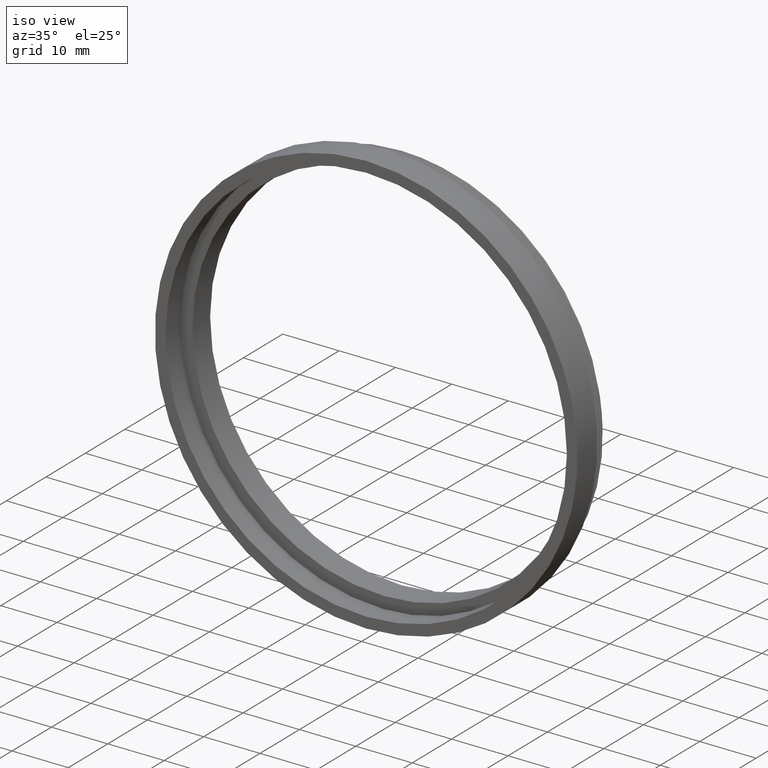
[diagram: clean part render]
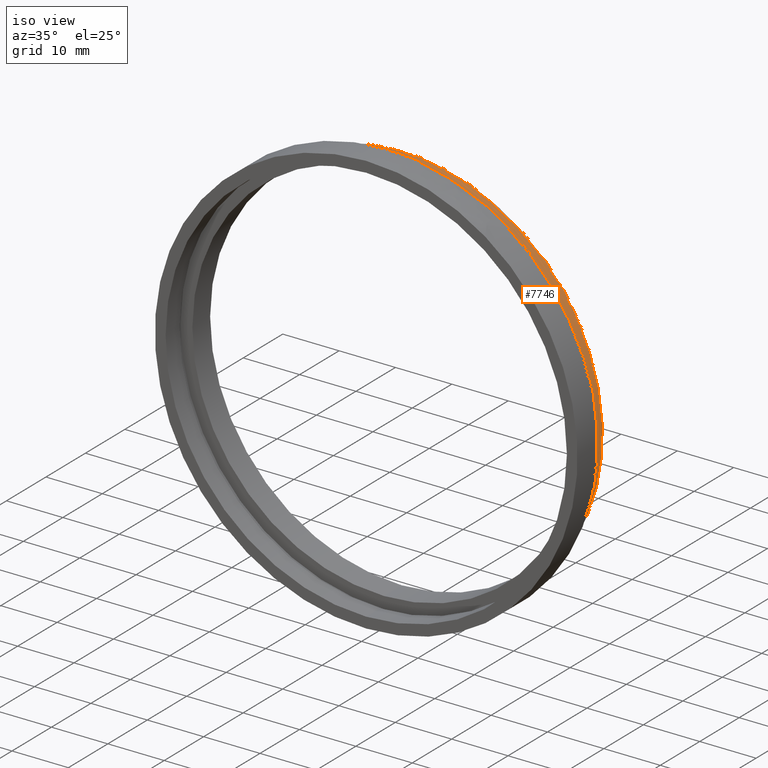
[diagram: same view with one face highlighted and labeled with its STEP entity id]
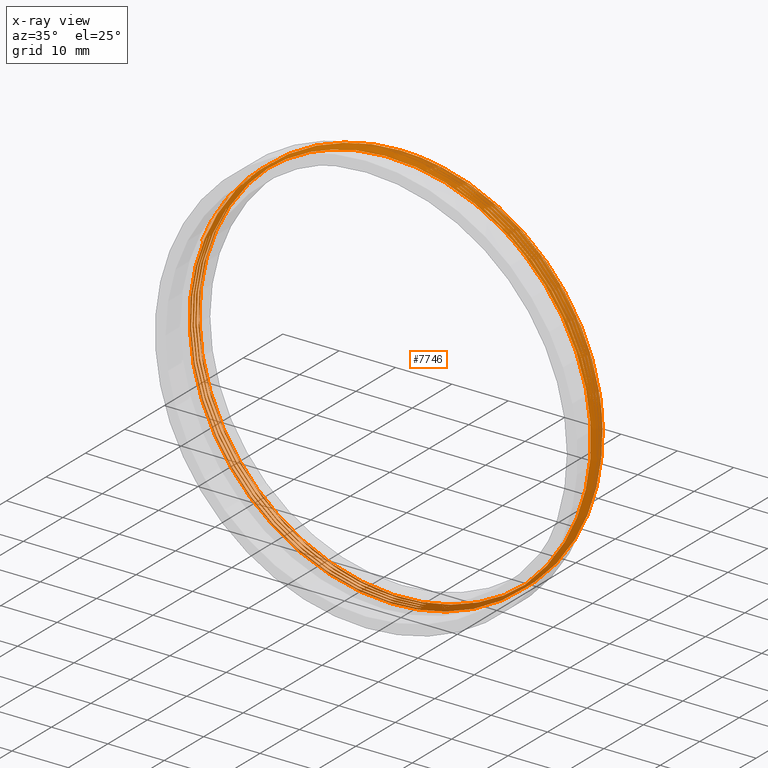
[diagram: x-ray of the same camera — body ghosted, the highlighted face saturated]
A machine part, iso view. The second image highlights one B-rep face of the part: STEP entity #7746.
The next image is the same camera in x-ray: the body ghosted, the highlighted face saturated — about 0% of this face is hidden behind the body in this view.
In plain terms, the highlighted face is a freeform B-spline surface patch.
Its self-contained STEP definition (entity closure, byte-faithful):
#50 = CARTESIAN_POINT ( 'NONE',  ( -35.87260631829334301, 9.900147150000201179, -2.681938115836734582 ) ) ;
#52 = CARTESIAN_POINT ( 'NONE',  ( 35.62111388750000884, 11.55402519444426446, -20.56585969178244255 ) ) ;
#95 = VERTEX_POINT ( 'NONE', #6497 ) ;
#108 = EDGE_CURVE ( 'NONE', #14016, #95, #4166, .T. ) ;
#118 = VERTEX_POINT ( 'NONE', #7572 ) ;
#151 = CARTESIAN_POINT ( 'NONE',  ( -36.00000000000000000, 7.106108526821683036, -20.78460969082654231 ) ) ;
#178 = CARTESIAN_POINT ( 'NONE',  ( -15.63595998157676981, 7.201941862066984612, 32.26889283643329520 ) ) ;
#233 = CARTESIAN_POINT ( 'NONE',  ( -36.00000000000000000, 8.506108526821684279, -20.78460969082654231 ) ) ;
#260 = CARTESIAN_POINT ( 'NONE',  ( 1.438341645174075589, 7.201941862066989053, 35.75475758841722751 ) ) ;
#307 = CARTESIAN_POINT ( 'NONE',  ( 17.99999999999997868, 7.397775193488349998, 31.17691453623980991 ) ) ;
#317 = CARTESIAN_POINT ( 'NONE',  ( -17.99999999999999645, 9.147775193488349998, -31.17691453623979569 ) ) ;
#331 = CARTESIAN_POINT ( 'NONE',  ( -17.81055694375002219, 9.162358527777598738, 30.84878953767366383 ) ) ;
#332 = CARTESIAN_POINT ( 'NONE',  ( -33.38365302292801573, 7.201941862066987277, 13.53255481491319401 ) ) ;
#383 = CARTESIAN_POINT ( 'NONE',  ( 17.99999999999997868, 11.59777519348834929, 31.17691453623980991 ) ) ;
#407 = CARTESIAN_POINT ( 'NONE',  ( 35.62111388750000884, 9.395691861110931242, 0.0000000000000000000 ) ) ;
#408 = CARTESIAN_POINT ( 'NONE',  ( -23.01945737712455298, 7.201941862066986388, 27.58035882311828502 ) ) ;
#434 = CARTESIAN_POINT ( 'NONE',  ( 35.67871940191677282, 10.12546605506044450, 0.7742120521876179051 ) ) ;
#441 = EDGE_CURVE ( 'NONE', #1344, #1586, #1873, .T. ) ;
#463 = CARTESIAN_POINT ( 'NONE',  ( 2.518591424325494649E-15, 7.470691861110932308, -41.13171938356489221 ) ) ;
#488 = CARTESIAN_POINT ( 'NONE',  ( 35.62111388750000884, 8.695691861110931953, 0.0000000000000000000 ) ) ;
#489 = CARTESIAN_POINT ( 'NONE',  ( -3.701648829936448504, 7.201941862066987277, 35.59834074094182910 ) ) ;
#514 = CARTESIAN_POINT ( 'NONE',  ( 8.575440437933973925, 10.03364097922873199, 34.73591815396894589 ) ) ;
#548 = CARTESIAN_POINT ( 'NONE',  ( -36.00000000000000000, 10.60610852682168392, -20.78460969082654231 ) ) ;
#575 = CARTESIAN_POINT ( 'NONE',  ( -17.81055694375002219, 9.862358527777599804, 30.84878953767366383 ) ) ;
#634 = CARTESIAN_POINT ( 'NONE',  ( -7.636141718819330773E-15, 10.83944186015501820, 41.56921938165306329 ) ) ;
#647 = CARTESIAN_POINT ( 'NONE',  ( 17.99999999999997868, 9.497775193488349643, 31.17691453623980991 ) ) ;
#663 = CARTESIAN_POINT ( 'NONE',  ( 23.98621856489824822, 7.201941862066988165, 26.33486422108866876 ) ) ;
#683 = CARTESIAN_POINT ( 'NONE',  ( 35.61109147914659445, 10.13173274152309133, -2.682952294131342619 ) ) ;
#714 = CARTESIAN_POINT ( 'NONE',  ( -35.62111388750001595, 7.004025194444265523, 20.56585969178243190 ) ) ;
#795 = CARTESIAN_POINT ( 'NONE',  ( -5.642967101308217437, 10.00424898539853480, 35.35472372489843451 ) ) ;
#798 = CARTESIAN_POINT ( 'NONE',  ( -35.62111388750000174, 8.987358527777598027, -20.56585969178245676 ) ) ;
#813 = CARTESIAN_POINT ( 'NONE',  ( 9.646170927520424598, 9.758181121038052908, -36.00000000000000000 ) ) ;
#831 = CARTESIAN_POINT ( 'NONE',  ( 17.81055694374997955, 9.979025194444265168, 30.84878953767368159 ) ) ;
#884 = CARTESIAN_POINT ( 'NONE',  ( 17.81055694375000797, 10.91235852777760051, -30.84878953767366738 ) ) ;
#959 = CARTESIAN_POINT ( 'NONE',  ( -11.18191783570201814, 9.992811528931515141, 34.09343171819931229 ) ) ;
#961 = CARTESIAN_POINT ( 'NONE',  ( 17.81055694375000797, 9.512358527777600159, -30.84878953767366738 ) ) ;
#1035 = CARTESIAN_POINT ( 'NONE',  ( -7.798553011287185477, 9.810043244302532273, -35.14149698353386952 ) ) ;
#1037 = CARTESIAN_POINT ( 'NONE',  ( -35.62111388750000884, 11.14569186111093124, -4.362328310439021147E-15 ) ) ;
#1110 = CARTESIAN_POINT ( 'NONE',  ( 35.62111388750000884, 7.995691861110931775, 0.0000000000000000000 ) ) ;
#1125 = EDGE_CURVE ( 'NONE', #1906, #95, #9834, .T. ) ;
#1148 = CARTESIAN_POINT ( 'NONE',  ( 1.487416814333745711E-14, 8.039441860155015718, 36.00000000000001421 ) ) ;
#1192 = CARTESIAN_POINT ( 'NONE',  ( -32.36473107076116662, 9.873188709660322360, -15.76432702153986476 ) ) ;
#1218 = CARTESIAN_POINT ( 'NONE',  ( 17.99999999999997868, 8.097775193488349288, 31.17691453623980991 ) ) ;
#1272 = CARTESIAN_POINT ( 'NONE',  ( -34.24304978784885378, 9.925858954995129935, 10.76095976893022588 ) ) ;
#1275 = CARTESIAN_POINT ( 'NONE',  ( -17.81055694375002219, 11.96235852777759945, 30.84878953767366383 ) ) ;
#1297 = CARTESIAN_POINT ( 'NONE',  ( -18.00000000000001776, 7.281108526821682858, 31.17691453623978859 ) ) ;
#1344 = VERTEX_POINT ( 'NONE', #5007 ) ;
#1350 = CARTESIAN_POINT ( 'NONE',  ( 30.23559428297230767, 10.16650227740324475, -18.94023368143191632 ) ) ;
#1356 = CARTESIAN_POINT ( 'NONE',  ( -17.81632644591712378, 9.830650760877482242, -31.26961368249205009 ) ) ;
#1381 = CARTESIAN_POINT ( 'NONE',  ( 36.00000000000000000, 7.572775193488350709, -20.78460969082652454 ) ) ;
#1410 = CARTESIAN_POINT ( 'NONE',  ( -33.89009197315700561, 7.201941862066987277, 12.14337951523215686 ) ) ;
#1431 = CARTESIAN_POINT ( 'NONE',  ( 31.11913924935434750, 10.16291705995680594, -17.45572700781989184 ) ) ;
#1443 = CARTESIAN_POINT ( 'NONE',  ( 35.62111388749998753, 12.13735852777759838, 20.56585969178246742 ) ) ;
#1463 = CARTESIAN_POINT ( 'NONE',  ( 17.99999999999997868, 10.19777519348834893, 31.17691453623980991 ) ) ;
#1489 = CARTESIAN_POINT ( 'NONE',  ( 17.81055694375000797, 7.412358527777599626, -30.84878953767366738 ) ) ;
#1490 = CARTESIAN_POINT ( 'NONE',  ( -31.42662805937598947, 7.201941862066989941, 17.50805069557598159 ) ) ;
#1542 = CARTESIAN_POINT ( 'NONE',  ( -7.636141718819330773E-15, 9.439441860155014297, 41.56921938165306329 ) ) ;
#1566 = EDGE_CURVE ( 'NONE', #15599, #8743, #5224, .T. ) ;
#1574 = CARTESIAN_POINT ( 'NONE',  ( 35.62111388750000884, 8.754025194444265523, -20.56585969178243545 ) ) ;
#1575 = CARTESIAN_POINT ( 'NONE',  ( 9.646170927520408611, 7.658181121038053263, -36.00000000000001421 ) ) ;
#1586 = VERTEX_POINT ( 'NONE', #1148 ) ;
#1593 = CARTESIAN_POINT ( 'NONE',  ( 34.38643360131064952, 10.14518812689516203, -9.472649439792254711 ) ) ;
#1623 = CARTESIAN_POINT ( 'NONE',  ( 18.00000000000000711, 12.53110852682168286, -31.17691453623979214 ) ) ;
#1650 = CARTESIAN_POINT ( 'NONE',  ( 2.518591424325494649E-15, 7.470691861110932308, -41.13171938356488511 ) ) ;
#1651 = CARTESIAN_POINT ( 'NONE',  ( -26.23237905297002470, 7.201941862066987277, 24.54612998415006331 ) ) ;
#1673 = CARTESIAN_POINT ( 'NONE',  ( 34.23218300094701050, 10.10712445186936037, 10.14985059229315212 ) ) ;
#1701 = CARTESIAN_POINT ( 'NONE',  ( -32.43487870440517895, 12.81405668659260222, 15.61981572972368326 ) ) ;
#1728 = CARTESIAN_POINT ( 'NONE',  ( -17.81055694374999732, 8.229025194444265168, -30.84878953767367094 ) ) ;
#1729 = CARTESIAN_POINT ( 'NONE',  ( -11.55043705658017039, 7.201941862066986388, 33.94580771056629942 ) ) ;
#1752 = CARTESIAN_POINT ( 'NONE',  ( 35.53098959817407376, 10.12062228401395458, 3.384433161545928215 ) ) ;
#1783 = CARTESIAN_POINT ( 'NONE',  ( 18.00000000000000711, 11.83110852682168357, -31.17691453623979214 ) ) ;
#1811 = CARTESIAN_POINT ( 'NONE',  ( -35.62111388750000884, 8.345691861110932308, -4.362328310439021147E-15 ) ) ;
#1835 = CARTESIAN_POINT ( 'NONE',  ( 22.41506590955731326, 10.06308093227115208, 27.88910357764744674 ) ) ;
#1867 = CARTESIAN_POINT ( 'NONE',  ( 35.99999999999999289, 12.35610852682168392, 20.78460969082654586 ) ) ;
#1873 =( BOUNDED_CURVE ( )  B_SPLINE_CURVE ( 2, ( #13785, #10998, #10305, #2755, #16233, #10007, #15307, #9846, #15005 ),
 .UNSPECIFIED., .F., .T. ) 
 B_SPLINE_CURVE_WITH_KNOTS ( ( 3, 2, 2, 2, 3 ),
 ( 0.1388888888888888951, 0.1481481481481481399, 0.1666666666666666574, 0.1851851851851851749, 0.1944444444444444475 ),
 .UNSPECIFIED. ) 
 CURVE ( )  GEOMETRIC_REPRESENTATION_ITEM ( )  RATIONAL_B_SPLINE_CURVE ( ( 0.9330127018922192983, 0.9330127018922194093, 1.000000000000000000, 0.8660254037844387076, 1.000000000000000000, 0.8660254037844387076, 1.000000000000000000, 0.9330127018922191873, 0.9330127018922192983 ) ) 
 REPRESENTATION_ITEM ( '' )  );
#1894 = CARTESIAN_POINT ( 'NONE',  ( 19.33392436993738173, 7.201941862066983724, 29.96343993546123485 ) ) ;
#1902 = CARTESIAN_POINT ( 'NONE',  ( -9.646170927520405058, 8.708181121038053973, 36.00000000000001421 ) ) ;
#1906 = VERTEX_POINT ( 'NONE', #7288 ) ;
#1917 = CARTESIAN_POINT ( 'NONE',  ( 3.442451434952593647, 10.02302431517010817, 35.65541191575835001 ) ) ;
#1951 = CARTESIAN_POINT ( 'NONE',  ( 17.99999999999997868, 12.29777519348835035, 31.17691453623980991 ) ) ;
#2030 = CARTESIAN_POINT ( 'NONE',  ( -3.950144508255232445, 10.00774582761950704, 35.58007870967745134 ) ) ;
#2032 = CARTESIAN_POINT ( 'NONE',  ( -35.62111388750001595, 10.50402519444426730, 20.56585969178243190 ) ) ;
#2116 = CARTESIAN_POINT ( 'NONE',  ( 17.81055694375000797, 10.21235852777759945, -30.84878953767366738 ) ) ;
#2196 = CARTESIAN_POINT ( 'NONE',  ( 17.81055694375000797, 8.112358527777599804, -30.84878953767366738 ) ) ;
#2198 = CARTESIAN_POINT ( 'NONE',  ( 18.00000000000000711, 8.331108526821683569, -31.17691453623979214 ) ) ;
#2207 = CARTESIAN_POINT ( 'NONE',  ( 4.276323341209519156E-14, 9.439441860155014297, 36.00000000000000711 ) ) ;
#2211 =( BOUNDED_CURVE ( )  B_SPLINE_CURVE ( 2, ( #11801, #5640, #3183, #8198, #4739, #5800, #2198, #13604, #9672 ),
 .UNSPECIFIED., .F., .T. ) 
 B_SPLINE_CURVE_WITH_KNOTS ( ( 3, 2, 2, 2, 3 ),
 ( 0.1944444444444444475, 0.2037037037037036924, 0.2222222222222222099, 0.2407407407407407274, 0.2500000000000000000 ),
 .UNSPECIFIED. ) 
 CURVE ( )  GEOMETRIC_REPRESENTATION_ITEM ( )  RATIONAL_B_SPLINE_CURVE ( ( 0.9330127018922192983, 0.9330127018922194093, 1.000000000000000000, 0.8660254037844387076, 1.000000000000000000, 0.8660254037844387076, 1.000000000000000000, 0.9330127018922191873, 0.9330127018922192983 ) ) 
 REPRESENTATION_ITEM ( '' )  );
#2230 = CARTESIAN_POINT ( 'NONE',  ( -9.646170927520419269, 7.308181121038051842, 36.00000000000001421 ) ) ;
#2268 = CARTESIAN_POINT ( 'NONE',  ( -10.01298068570984512, 9.814596520004604585, -34.57100514867067886 ) ) ;
#2271 = CARTESIAN_POINT ( 'NONE',  ( -35.62111388750001595, 9.104025194444265168, 20.56585969178243190 ) ) ;
#2350 = CARTESIAN_POINT ( 'NONE',  ( 35.62111388750000884, 10.85402519444426517, -20.56585969178244255 ) ) ;
#2398 =( BOUNDED_CURVE ( )  B_SPLINE_CURVE ( 2, ( #10334, #5244, #317, #10579, #6706, #11723, #15334, #9180, #14271 ),
 .UNSPECIFIED., .F., .T. ) 
 B_SPLINE_CURVE_WITH_KNOTS ( ( 3, 2, 2, 2, 3 ),
 ( 0.3611111111111111049, 0.3703703703703703498, 0.3888888888888888951, 0.4074074074074073848, 0.4166666666666666852 ),
 .UNSPECIFIED. ) 
 CURVE ( )  GEOMETRIC_REPRESENTATION_ITEM ( )  RATIONAL_B_SPLINE_CURVE ( ( 0.9330127018922194093, 0.9330127018922194093, 1.000000000000000000, 0.8660254037844387076, 1.000000000000000000, 0.8660254037844387076, 1.000000000000000000, 0.9330127018922191873, 0.9330127018922194093 ) ) 
 REPRESENTATION_ITEM ( '' )  );
#2426 = CARTESIAN_POINT ( 'NONE',  ( -30.69666539005071471, 9.866206356241663755, -18.71818501980028771 ) ) ;
#2450 = CARTESIAN_POINT ( 'NONE',  ( 36.00000000000000000, 8.972775193488349288, -20.78460969082652454 ) ) ;
#2472 = CARTESIAN_POINT ( 'NONE',  ( -2.510015874188196163E-14, 8.389441860155018915, -36.00000000000001421 ) ) ;
#2491 =( BOUNDED_CURVE ( )  B_SPLINE_CURVE ( 2, ( #15771, #15605, #9288, #9456, #4614, #3138, #8150, #1902, #9622 ),
 .UNSPECIFIED., .F., .T. ) 
 B_SPLINE_CURVE_WITH_KNOTS ( ( 3, 2, 2, 2, 3 ),
 ( 0.2500000000000000000, 0.2592592592592592449, 0.2777777777777777901, 0.2962962962962962798, 0.3055555555555555802 ),
 .UNSPECIFIED. ) 
 CURVE ( )  GEOMETRIC_REPRESENTATION_ITEM ( )  RATIONAL_B_SPLINE_CURVE ( ( 0.9330127018922192983, 0.9330127018922194093, 1.000000000000000000, 0.8660254037844387076, 1.000000000000000000, 0.8660254037844387076, 1.000000000000000000, 0.9330127018922191873, 0.9330127018922194093 ) ) 
 REPRESENTATION_ITEM ( '' )  );
#2502 = CARTESIAN_POINT ( 'NONE',  ( -31.62269968599728287, 9.939817305034441830, 17.06671638640641220 ) ) ;
#2504 = EDGE_CURVE ( 'NONE', #6096, #4155, #6901, .T. ) ;
#2529 = CARTESIAN_POINT ( 'NONE',  ( -36.00000000000001421, 7.222775193488350176, 20.78460969082651744 ) ) ;
#2582 = CARTESIAN_POINT ( 'NONE',  ( 28.23661208857574678, 10.17371356528047777, -21.79686785955197692 ) ) ;
#2588 = CARTESIAN_POINT ( 'NONE',  ( -30.09267035787609501, 9.863871582332567556, -19.67946861627710220 ) ) ;
#2615 = CARTESIAN_POINT ( 'NONE',  ( 35.99999999999999289, 8.856108526821682148, 20.78460969082654586 ) ) ;
#2647 = CARTESIAN_POINT ( 'NONE',  ( 35.99999999999999289, 7.456108526821682680, 20.78460969082654941 ) ) ;
#2675 = CARTESIAN_POINT ( 'NONE',  ( 17.81055694375000797, 11.61235852777759980, -30.84878953767366738 ) ) ;
#2694 = CARTESIAN_POINT ( 'NONE',  ( 36.00000000000000711, 9.614441860155016784, 0.0000000000000000000 ) ) ;
#2720 = CARTESIAN_POINT ( 'NONE',  ( 23.98621856489824822, 7.201941862066988165, 26.33486422108866876 ) ) ;
#2721 = CARTESIAN_POINT ( 'NONE',  ( -8.761881345434634483, 7.201941862066983724, 34.81428775674919507 ) ) ;
#2742 = CARTESIAN_POINT ( 'NONE',  ( 33.32324569364050149, 10.15224009232716362, -12.78581125046738798 ) ) ;
#2755 = CARTESIAN_POINT ( 'NONE',  ( -36.00000000000000000, 7.806108526821683213, -20.78460969082654231 ) ) ;
#2852 = CARTESIAN_POINT ( 'NONE',  ( 2.545380572939776398E-15, 12.58944186015501643, -41.56921938165306329 ) ) ;
#2878 = CARTESIAN_POINT ( 'NONE',  ( -17.81055694374999732, 8.929025194444266234, -30.84878953767367094 ) ) ;
#2879 = CARTESIAN_POINT ( 'NONE',  ( -28.16954268026190888, 7.201941862066987277, 22.35798001530611145 ) ) ;
#2902 = CARTESIAN_POINT ( 'NONE',  ( 9.410655944153900165, 10.03536902908007811, 34.51708890835501364 ) ) ;
#2934 = CARTESIAN_POINT ( 'NONE',  ( 35.62111388750000884, 7.354025194444265168, -20.56585969178244255 ) ) ;
#2986 = CARTESIAN_POINT ( 'NONE',  ( 29.45064475686292482, 10.08399034283392659, 20.28285545296170511 ) ) ;
#3017 = CARTESIAN_POINT ( 'NONE',  ( 35.62111388749998753, 7.237358527777598916, 20.56585969178246742 ) ) ;
#3039 = CARTESIAN_POINT ( 'NONE',  ( 9.646170927520424598, 9.058181121038055394, -36.00000000000000000 ) ) ;
#3042 = CARTESIAN_POINT ( 'NONE',  ( -35.62111388750000884, 9.045691861110931598, -4.362328310439021147E-15 ) ) ;
#3065 = CARTESIAN_POINT ( 'NONE',  ( 24.34662656686855797, 10.06815731153196758, 26.17036315188026308 ) ) ;
#3096 = CARTESIAN_POINT ( 'NONE',  ( 36.00000000000000711, 11.01444186015501714, 0.0000000000000000000 ) ) ;
#3138 = CARTESIAN_POINT ( 'NONE',  ( -36.00000000000001421, 8.622775193488349643, 20.78460969082651744 ) ) ;
#3181 = CARTESIAN_POINT ( 'NONE',  ( 2.545380572939776398E-15, 10.48944186015501678, -41.56921938165306329 ) ) ;
#3183 = CARTESIAN_POINT ( 'NONE',  ( 17.99999999999997868, 8.097775193488349288, 31.17691453623980991 ) ) ;
#3192 = CARTESIAN_POINT ( 'NONE',  ( 4.648177544792954952E-15, 9.789441860155015718, -36.00000000000000711 ) ) ;
#3257 = CARTESIAN_POINT ( 'NONE',  ( -1.487416814333745711E-14, 10.01590828707752223, 35.78603357498927551 ) ) ;
#3259 = CARTESIAN_POINT ( 'NONE',  ( -17.81055694375002219, 9.162358527777598738, 30.84878953767366383 ) ) ;
#3272 = CARTESIAN_POINT ( 'NONE',  ( 36.00000000000000711, 9.672775193488350354, -20.78460969082652454 ) ) ;
#3282 = CARTESIAN_POINT ( 'NONE',  ( 35.99999999999999289, 8.856108526821683924, 20.78460969082654941 ) ) ;
#3343 = CARTESIAN_POINT ( 'NONE',  ( -17.81055694374999732, 8.929025194444266234, -30.84878953767367094 ) ) ;
#3423 = CARTESIAN_POINT ( 'NONE',  ( -17.81055694375002219, 8.462358527777599448, 30.84878953767366383 ) ) ;
#3499 = CARTESIAN_POINT ( 'NONE',  ( -28.07856463301876460, 9.856864597666069372, -22.44920890713573769 ) ) ;
#3502 = CARTESIAN_POINT ( 'NONE',  ( -35.62111388750000174, 11.08735852777759945, -20.56585969178245676 ) ) ;
#3576 = CARTESIAN_POINT ( 'NONE',  ( -35.96827918592265405, 9.904141045571822843, -0.4195287272648619559 ) ) ;
#3578 = CARTESIAN_POINT ( 'NONE',  ( -7.555774272976482763E-15, 11.32069186111093551, 41.13171938356489221 ) ) ;
#3655 = CARTESIAN_POINT ( 'NONE',  ( -14.82305610394440265, 9.824490466775600339, -32.85969863240929101 ) ) ;
#3678 = CARTESIAN_POINT ( 'NONE',  ( -7.636141718819330773E-15, 10.13944186015501714, 41.56921938165306329 ) ) ;
#3737 = CARTESIAN_POINT ( 'NONE',  ( -35.38363068715278104, 9.916885252175688947, 6.390135852520506532 ) ) ;
#3739 = CARTESIAN_POINT ( 'NONE',  ( -35.62111388750000174, 12.56875273844016760, 8.130287443242528056 ) ) ;
#3761 = CARTESIAN_POINT ( 'NONE',  ( 35.99999999999999289, 8.156108526821684634, 20.78460969082654586 ) ) ;
#3815 = CARTESIAN_POINT ( 'NONE',  ( -35.41502916890718211, 9.893684466304314640, -6.037641204153011643 ) ) ;
#3817 = CARTESIAN_POINT ( 'NONE',  ( -17.81055694374999732, 12.42902519444426623, -30.84878953767367094 ) ) ;
#3843 = CARTESIAN_POINT ( 'NONE',  ( -18.00000000000001776, 9.381108526821682503, 31.17691453623978859 ) ) ;
#3927 = CARTESIAN_POINT ( 'NONE',  ( 36.00000000000000000, 6.872775193488348755, -20.78460969082652454 ) ) ;
#3954 = CARTESIAN_POINT ( 'NONE',  ( 2.518591424325494649E-15, 8.870691861110932663, -41.13171938356488511 ) ) ;
#3955 = CARTESIAN_POINT ( 'NONE',  ( 1.487416814333745711E-14, 7.339441860155017316, 36.00000000000001421 ) ) ;
#4003 = CARTESIAN_POINT ( 'NONE',  ( -36.00000000000001421, 8.622775193488349643, 20.78460969082651744 ) ) ;
#4031 = CARTESIAN_POINT ( 'NONE',  ( 35.62111388750000884, 7.295691861110932486, 0.0000000000000000000 ) ) ;
#4070 =( BOUNDED_SURFACE ( )  B_SPLINE_SURFACE ( 1, 2, ( 
 ( #13948, #3927, #8931, #8767, #12463, #151, #11554, #2529, #1297, #8849, #307, #11313, #7615, #1381, #15240, #12624, #5074, #4988, #10004, #5313, #10084, #6539, #1218, #3761, #11472, #6460, #13782, #15002, #7693, #233, #13701, #4003, #6209, #13865, #6378, #2615, #7533, #2450, #12544, #11396, #7772, #12783, #14025, #15087, #3843, #1542, #6294, #5156, #2694, #10167, #15163, #12704, #5233, #10323, #16230, #10249, #9012, #3678, #1463, #8692, #11227, #10644, #4245, #3181, #11881, #548, #15570, #12947, #14181, #634, #6694, #9088, #3096, #4328, #14343, #9332, #5637, #7856, #12862, #9167, #9417, #13199, #383, #8114, #13114, #15324, #1783, #6779, #13027, #10401, #9255, #15650, #11799, #14100, #1951, #1867, #5556, #10568, #1623, #2852, #6615, #11967, #7939, #6865, #1701 ),
 ( #14258, #8196, #4408, #11632, #14421, #4161, #6948, #714, #5717, #4079, #5388, #3017, #15402, #2934, #11712, #463, #5472, #10482, #8026, #15489, #15900, #14509, #4659, #9669, #1110, #13602, #2196, #14668, #10726, #10813, #12365, #12052, #3423, #14590, #4810, #15734, #8444, #4495, #10895, #13447, #3343, #798, #16049, #2271, #3259, #7116, #15818, #9502, #5798, #9820, #961, #5957, #4581, #7192, #8517, #7272, #6037, #12283, #4737, #8281, #14823, #14750, #2116, #8361, #13279, #10974, #13368, #2032, #12210, #15979, #7030, #13526, #9745, #2350, #884, #8595, #12131, #3502, #1037, #9586, #11055, #3578, #5883, #7347, #11373, #52, #2675, #8746, #8910, #8826, #7427, #13928, #1275, #5050, #6112, #1443, #6274, #9983, #16207, #10061, #3817, #14982, #12684, #3739, #12521 ) ),
 .UNSPECIFIED., .F., .F., .T. ) 
 B_SPLINE_SURFACE_WITH_KNOTS ( ( 2, 2 ),
 ( 3, 2, 2, 2, 2, 2, 2, 2, 2, 2, 2, 2, 2, 2, 2, 2, 2, 2, 2, 2, 2, 2, 2, 2, 2, 2, 2, 2, 2, 2, 2, 2, 2, 2, 2, 2, 2, 2, 2, 2, 2, 2, 2, 2, 2, 2, 2, 2, 2, 2, 2, 2, 3 ),
 ( 0.0000000000000000000, 1.000000000000000000 ),
 ( 0.0000000000000000000, 0.01851851851851851749, 0.03703703703703703498, 0.05555555555555555247, 0.07407407407407406996, 0.09259259259259258745, 0.1111111111111111049, 0.1296296296296296224, 0.1481481481481481399, 0.1666666666666666574, 0.1851851851851851749, 0.2037037037037036924, 0.2222222222222222099, 0.2407407407407407274, 0.2592592592592592449, 0.2777777777777777901, 0.2962962962962962798, 0.3148148148148148251, 0.3333333333333333148, 0.3518518518518518601, 0.3703703703703703498, 0.3888888888888888951, 0.4074074074074073848, 0.4259259259259259300, 0.4444444444444444198, 0.4629629629629629650, 0.4814814814814814548, 0.5000000000000000000, 0.5185185185185184897, 0.5370370370370370905, 0.5555555555555555802, 0.5740740740740740700, 0.5925925925925925597, 0.6111111111111111605, 0.6296296296296296502, 0.6481481481481481399, 0.6666666666666666297, 0.6851851851851852304, 0.7037037037037037202, 0.7222222222222222099, 0.7407407407407406996, 0.7592592592592593004, 0.7777777777777777901, 0.7962962962962962798, 0.8148148148148147696, 0.8333333333333333703, 0.8518518518518518601, 0.8703703703703703498, 0.8888888888888888395, 0.9074074074074074403, 0.9259259259259259300, 0.9444444444444444198, 0.9524107090351238147 ),
 .UNSPECIFIED. ) 
 GEOMETRIC_REPRESENTATION_ITEM ( )  RATIONAL_B_SPLINE_SURFACE ( (
 ( 1.000000000000000000, 0.8660254037844387076, 1.000000000000000000, 0.8660254037844387076, 1.000000000000000000, 0.8660254037844387076, 1.000000000000000000, 0.8660254037844387076, 1.000000000000000000, 0.8660254037844387076, 1.000000000000000000, 0.8660254037844387076, 1.000000000000000000, 0.8660254037844387076, 1.000000000000000000, 0.8660254037844387076, 1.000000000000000000, 0.8660254037844387076, 1.000000000000000000, 0.8660254037844387076, 1.000000000000000000, 0.8660254037844387076, 1.000000000000000000, 0.8660254037844387076, 1.000000000000000000, 0.8660254037844387076, 1.000000000000000000, 0.8660254037844387076, 1.000000000000000000, 0.8660254037844387076, 1.000000000000000000, 0.8660254037844387076, 1.000000000000000000, 0.8660254037844387076, 1.000000000000000000, 0.8660254037844387076, 1.000000000000000000, 0.8660254037844387076, 1.000000000000000000, 0.8660254037844387076, 1.000000000000000000, 0.8660254037844387076, 1.000000000000000000, 0.8660254037844387076, 1.000000000000000000, 0.8660254037844387076, 1.000000000000000000, 0.8660254037844387076, 1.000000000000000000, 0.8660254037844387076, 1.000000000000000000, 0.8660254037844387076, 1.000000000000000000, 0.8660254037844387076, 1.000000000000000000, 0.8660254037844387076, 1.000000000000000000, 0.8660254037844387076, 1.000000000000000000, 0.8660254037844387076, 1.000000000000000000, 0.8660254037844387076, 1.000000000000000000, 0.8660254037844387076, 1.000000000000000000, 0.8660254037844387076, 1.000000000000000000, 0.8660254037844387076, 1.000000000000000000, 0.8660254037844387076, 1.000000000000000000, 0.8660254037844387076, 1.000000000000000000, 0.8660254037844387076, 1.000000000000000000, 0.8660254037844387076, 1.000000000000000000, 0.8660254037844387076, 1.000000000000000000, 0.8660254037844387076, 1.000000000000000000, 0.8660254037844387076, 1.000000000000000000, 0.8660254037844387076, 1.000000000000000000, 0.8660254037844387076, 1.000000000000000000, 0.8660254037844387076, 1.000000000000000000, 0.8660254037844387076, 1.000000000000000000, 0.8660254037844387076, 1.000000000000000000, 0.8660254037844387076, 1.000000000000000000, 0.8660254037844387076, 1.000000000000000000, 0.8660254037844387076, 1.000000000000000000, 0.8660254037844387076, 1.000000000000000000, 0.8660254037844387076, 1.000000000000000000, 0.9423670375783397279, 0.9343189733586074741),
 ( 1.000000000000000000, 0.8660254037844387076, 1.000000000000000000, 0.8660254037844387076, 1.000000000000000000, 0.8660254037844387076, 1.000000000000000000, 0.8660254037844387076, 1.000000000000000000, 0.8660254037844387076, 1.000000000000000000, 0.8660254037844387076, 1.000000000000000000, 0.8660254037844387076, 1.000000000000000000, 0.8660254037844387076, 1.000000000000000000, 0.8660254037844387076, 1.000000000000000000, 0.8660254037844387076, 1.000000000000000000, 0.8660254037844387076, 1.000000000000000000, 0.8660254037844387076, 1.000000000000000000, 0.8660254037844387076, 1.000000000000000000, 0.8660254037844387076, 1.000000000000000000, 0.8660254037844387076, 1.000000000000000000, 0.8660254037844387076, 1.000000000000000000, 0.8660254037844387076, 1.000000000000000000, 0.8660254037844387076, 1.000000000000000000, 0.8660254037844387076, 1.000000000000000000, 0.8660254037844387076, 1.000000000000000000, 0.8660254037844387076, 1.000000000000000000, 0.8660254037844387076, 1.000000000000000000, 0.8660254037844387076, 1.000000000000000000, 0.8660254037844387076, 1.000000000000000000, 0.8660254037844387076, 1.000000000000000000, 0.8660254037844387076, 1.000000000000000000, 0.8660254037844387076, 1.000000000000000000, 0.8660254037844387076, 1.000000000000000000, 0.8660254037844387076, 1.000000000000000000, 0.8660254037844387076, 1.000000000000000000, 0.8660254037844387076, 1.000000000000000000, 0.8660254037844387076, 1.000000000000000000, 0.8660254037844387076, 1.000000000000000000, 0.8660254037844387076, 1.000000000000000000, 0.8660254037844387076, 1.000000000000000000, 0.8660254037844387076, 1.000000000000000000, 0.8660254037844387076, 1.000000000000000000, 0.8660254037844387076, 1.000000000000000000, 0.8660254037844387076, 1.000000000000000000, 0.8660254037844387076, 1.000000000000000000, 0.8660254037844387076, 1.000000000000000000, 0.8660254037844387076, 1.000000000000000000, 0.8660254037844387076, 1.000000000000000000, 0.8660254037844387076, 1.000000000000000000, 0.8660254037844387076, 1.000000000000000000, 0.8660254037844387076, 1.000000000000000000, 0.8660254037844387076, 1.000000000000000000, 0.8660254037844387076, 1.000000000000000000, 0.8660254037844387076, 1.000000000000000000, 0.8660254037844387076, 1.000000000000000000, 0.8660254037844387076, 1.000000000000000000, 0.9423670375783397279, 0.9343189733586074741) ) ) 
 REPRESENTATION_ITEM ( '' )  SURFACE ( )  );
#4079 = CARTESIAN_POINT ( 'NONE',  ( -7.555774272976482763E-15, 7.120691861110932663, 41.13171938356489221 ) ) ;
#4109 = CARTESIAN_POINT ( 'NONE',  ( -32.79260487625644060, 7.201941862066989053, 14.88782327753775547 ) ) ;
#4110 = ORIENTED_EDGE ( 'NONE', *, *, #9743, .T. ) ;
#4130 = CARTESIAN_POINT ( 'NONE',  ( 33.08650729316558170, 10.10006723521499694, 13.41999180402134506 ) ) ;
#4155 = VERTEX_POINT ( 'NONE', #8703 ) ;
#4161 = CARTESIAN_POINT ( 'NONE',  ( -35.62111388750000174, 6.887358527777600159, -20.56585969178245676 ) ) ;
#4166 =( BOUNDED_CURVE ( )  B_SPLINE_CURVE ( 2, ( #12739, #6171, #14060 ),
 .UNSPECIFIED., .F., .T. ) 
 B_SPLINE_CURVE_WITH_KNOTS ( ( 3, 3 ),
 ( 0.4722222222222222099, 0.4740787817015381655 ),
 .UNSPECIFIED. ) 
 CURVE ( )  GEOMETRIC_REPRESENTATION_ITEM ( )  RATIONAL_B_SPLINE_CURVE ( ( 0.9330127018922194093, 0.9330127018922194093, 0.9357058343061483985 ) ) 
 REPRESENTATION_ITEM ( '' )  );
#4187 = CARTESIAN_POINT ( 'NONE',  ( 35.62111388750000884, 7.354025194444264280, -20.56585969178243545 ) ) ;
#4245 = CARTESIAN_POINT ( 'NONE',  ( 18.00000000000000711, 10.43110852682168321, -31.17691453623979214 ) ) ;
#4266 = EDGE_CURVE ( 'NONE', #118, #11342, #2398, .T. ) ;
#4270 = CARTESIAN_POINT ( 'NONE',  ( 36.00000000000000711, 8.972775193488349288, -20.78460969082652454 ) ) ;
#4273 = CARTESIAN_POINT ( 'NONE',  ( 35.62111388749999463, 7.251053440697295294, 15.73761413296571909 ) ) ;
#4324 = CARTESIAN_POINT ( 'NONE',  ( -17.38810331481707649, 9.980005996473698460, 31.32397081495907898 ) ) ;
#4328 = CARTESIAN_POINT ( 'NONE',  ( 36.00000000000000000, 11.07277519348834893, -20.78460969082652454 ) ) ;
#4356 = CARTESIAN_POINT ( 'NONE',  ( 35.62111388749999463, 10.03735852777759874, 20.56585969178246742 ) ) ;
#4378 = CARTESIAN_POINT ( 'NONE',  ( 15.84597110172992629, 10.04868919447924469, 32.06163578890431154 ) ) ;
#4408 = CARTESIAN_POINT ( 'NONE',  ( 17.81055694375000797, 6.712358527777599448, -30.84878953767366738 ) ) ;
#4420 = EDGE_CURVE ( 'NONE', #11342, #14016, #15378, .T. ) ;
#4462 = CARTESIAN_POINT ( 'NONE',  ( 21.04983468687144210, 10.05979155810473102, 28.93774126276085568 ) ) ;
#4495 = CARTESIAN_POINT ( 'NONE',  ( 35.62111388750000884, 8.754025194444265523, -20.56585969178244255 ) ) ;
#4519 = CARTESIAN_POINT ( 'NONE',  ( 18.00000000000000711, 9.031108526821682858, -31.17691453623979214 ) ) ;
#4523 = CARTESIAN_POINT ( 'NONE',  ( 22.89833323136182486, 7.201941862066989941, 27.33653918206075062 ) ) ;
#4579 = CARTESIAN_POINT ( 'NONE',  ( -6.208706736340692700, 10.00308049693255796, 35.26097220297121737 ) ) ;
#4581 = CARTESIAN_POINT ( 'NONE',  ( -17.81055694374999732, 9.629025194444265523, -30.84878953767367094 ) ) ;
#4614 = CARTESIAN_POINT ( 'NONE',  ( -36.00000000000000711, 8.564441860155017849, -4.408728476930471644E-15 ) ) ;
#4659 = CARTESIAN_POINT ( 'NONE',  ( 17.81055694374997955, 7.879025194444265523, 30.84878953767368159 ) ) ;
#4734 = CARTESIAN_POINT ( 'NONE',  ( -21.25710678146600330, 9.971727148926284201, 28.93257722603150484 ) ) ;
#4737 = CARTESIAN_POINT ( 'NONE',  ( 17.81055694374997955, 9.979025194444265168, 30.84878953767368159 ) ) ;
#4739 = CARTESIAN_POINT ( 'NONE',  ( 36.00000000000000711, 8.214441860155016428, 0.0000000000000000000 ) ) ;
#4810 = CARTESIAN_POINT ( 'NONE',  ( 17.81055694374997955, 8.579025194444266589, 30.84878953767368159 ) ) ;
#4966 = CARTESIAN_POINT ( 'NONE',  ( -12.73698857726352252, 9.820198643472640043, -33.72917784289730037 ) ) ;
#4981 = ORIENTED_EDGE ( 'NONE', *, *, #8043, .F. ) ;
#4988 = CARTESIAN_POINT ( 'NONE',  ( -36.00000000000000000, 7.806108526821683213, -20.78460969082654231 ) ) ;
#5007 = CARTESIAN_POINT ( 'NONE',  ( -2.510015874188196163E-14, 7.689441860155017849, -36.00000000000001421 ) ) ;
#5048 = CARTESIAN_POINT ( 'NONE',  ( -35.20976973541189636, 9.891487219005366427, -7.150076353703817666 ) ) ;
#5050 = CARTESIAN_POINT ( 'NONE',  ( -7.555774272976482763E-15, 12.02069186111093302, 41.13171938356489221 ) ) ;
#5074 = CARTESIAN_POINT ( 'NONE',  ( -17.99999999999999645, 7.747775193488350531, -31.17691453623979569 ) ) ;
#5128 = EDGE_CURVE ( 'NONE', #7929, #11306, #2491, .T. ) ;
#5156 = CARTESIAN_POINT ( 'NONE',  ( 35.99999999999999289, 9.556108526821683213, 20.78460969082654586 ) ) ;
#5185 = CARTESIAN_POINT ( 'NONE',  ( -1.491893699132744278, 7.201941862066988165, 35.74675764092106078 ) ) ;
#5202 = CARTESIAN_POINT ( 'NONE',  ( 27.13149668832928896, 10.17729955282266197, -23.15265723872379056 ) ) ;
#5224 =( BOUNDED_CURVE ( )  B_SPLINE_CURVE ( 2, ( #13634, #12400, #14623, #2230, #7073 ),
 .UNSPECIFIED., .F., .T. ) 
 B_SPLINE_CURVE_WITH_KNOTS ( ( 3, 2, 3 ),
 ( 0.06170445918947704833, 0.07407407407407406996, 0.08333333333333334259 ),
 .UNSPECIFIED. ) 
 CURVE ( )  GEOMETRIC_REPRESENTATION_ITEM ( )  RATIONAL_B_SPLINE_CURVE ( ( 0.9405716274227207130, 0.9105104353866821931, 1.000000000000000000, 0.9330127018922191873, 0.9330127018922192983 ) ) 
 REPRESENTATION_ITEM ( '' )  );
#5233 = CARTESIAN_POINT ( 'NONE',  ( -17.99999999999999645, 9.847775193488349288, -31.17691453623979569 ) ) ;
#5244 = CARTESIAN_POINT ( 'NONE',  ( -9.646170927520412164, 9.120702599271982791, -36.00000000000000711 ) ) ;
#5264 = CARTESIAN_POINT ( 'NONE',  ( 17.81055694375000797, 8.112358527777599804, -30.84878953767366738 ) ) ;
#5265 = CARTESIAN_POINT ( 'NONE',  ( 5.786681770015163373, 7.201941862066983724, 35.28754586929566273 ) ) ;
#5313 = CARTESIAN_POINT ( 'NONE',  ( -36.00000000000001421, 7.922775193488350354, 20.78460969082651744 ) ) ;
#5341 = CARTESIAN_POINT ( 'NONE',  ( -30.67894209679780460, 7.201941862066987277, 18.77162611345007193 ) ) ;
#5388 = CARTESIAN_POINT ( 'NONE',  ( 17.81055694374997955, 7.179025194444265345, 30.84878953767368159 ) ) ;
#5411 = CARTESIAN_POINT ( 'NONE',  ( 35.62111388749999463, 9.337358527777599448, 20.56585969178246742 ) ) ;
#5412 = CARTESIAN_POINT ( 'NONE',  ( 17.99999999999997868, 7.397775193488349998, 31.17691453623980991 ) ) ;
#5437 = CARTESIAN_POINT ( 'NONE',  ( 13.49453333647203479, 10.04382069095403196, 33.15921671177235197 ) ) ;
#5472 = CARTESIAN_POINT ( 'NONE',  ( -17.81055694374999732, 7.529025194444265878, -30.84878953767367094 ) ) ;
#5498 = CARTESIAN_POINT ( 'NONE',  ( -17.81055694375002219, 7.762358527777599271, 30.84878953767366383 ) ) ;
#5499 = CARTESIAN_POINT ( 'NONE',  ( -2.964819780729781140, 7.201941862066989053, 35.66316501568383757 ) ) ;
#5522 = CARTESIAN_POINT ( 'NONE',  ( 33.97863084455002536, 10.10538054869766356, 10.97484093449017095 ) ) ;
#5556 = CARTESIAN_POINT ( 'NONE',  ( 36.00000000000000711, 12.41444186015501749, 0.0000000000000000000 ) ) ;
#5603 = CARTESIAN_POINT ( 'NONE',  ( 11.88551595047545995, 10.04049020625500788, 33.77254053633963338 ) ) ;
#5637 = CARTESIAN_POINT ( 'NONE',  ( -17.99999999999999645, 11.24777519348834964, -31.17691453623979569 ) ) ;
#5640 = CARTESIAN_POINT ( 'NONE',  ( 9.646170927520415717, 8.070702599271982081, 36.00000000000000711 ) ) ;
#5687 = CARTESIAN_POINT ( 'NONE',  ( 6.024489934113366196, 10.02836413979730956, 35.27338042446754685 ) ) ;
#5717 = CARTESIAN_POINT ( 'NONE',  ( -17.81055694375002219, 7.062358527777599093, 30.84878953767366383 ) ) ;
#5798 = CARTESIAN_POINT ( 'NONE',  ( 35.62111388750000884, 9.395691861110931242, 0.0000000000000000000 ) ) ;
#5800 = CARTESIAN_POINT ( 'NONE',  ( 36.00000000000000711, 8.272775193488349998, -20.78460969082652454 ) ) ;
#5883 = CARTESIAN_POINT ( 'NONE',  ( 17.81055694374997955, 11.37902519444426552, 30.84878953767368159 ) ) ;
#5955 = CARTESIAN_POINT ( 'NONE',  ( -15.36344545922231397, 9.984182637145799788, 32.37551173073567412 ) ) ;
#5957 = CARTESIAN_POINT ( 'NONE',  ( 2.518591424325494649E-15, 9.570691861110931953, -41.13171938356489221 ) ) ;
#6033 = CARTESIAN_POINT ( 'NONE',  ( -4.995155570682792145, 9.804280476605525152, -35.66778286024805311 ) ) ;
#6037 = CARTESIAN_POINT ( 'NONE',  ( -17.81055694375002219, 9.862358527777599804, 30.84878953767366383 ) ) ;
#6096 = VERTEX_POINT ( 'NONE', #12566 ) ;
#6110 = CARTESIAN_POINT ( 'NONE',  ( -33.05647423230193738, 9.932809688402624460, 13.96990142041629746 ) ) ;
#6112 = CARTESIAN_POINT ( 'NONE',  ( 17.81055694374997955, 12.07902519444426659, 30.84878953767368159 ) ) ;
#6156 = CARTESIAN_POINT ( 'NONE',  ( 4.648177544792954952E-15, 9.789441860155013941, -36.00000000000000711 ) ) ;
#6171 = CARTESIAN_POINT ( 'NONE',  ( -1.934138528055719952, 9.795709901681121323, -36.00000000000000711 ) ) ;
#6209 = CARTESIAN_POINT ( 'NONE',  ( -18.00000000000001776, 8.681108526821683213, 31.17691453623978859 ) ) ;
#6271 = CARTESIAN_POINT ( 'NONE',  ( -33.28614339207801009, 9.877814525483834984, -13.70235884654988467 ) ) ;
#6274 = CARTESIAN_POINT ( 'NONE',  ( 35.62111388750000884, 12.19569186111093195, 0.0000000000000000000 ) ) ;
#6294 = CARTESIAN_POINT ( 'NONE',  ( 17.99999999999997868, 9.497775193488349643, 31.17691453623980991 ) ) ;
#6370 = B_SPLINE_CURVE_WITH_KNOTS ( 'NONE', 3,
 ( #1410, #332, #4109, #7644, #1490, #5341, #7887, #15193, #2879, #13897, #1651, #6406, #6641, #408, #11424, #11738, #10426, #15427, #178, #8965, #10509, #1729, #2721, #6721, #489, #5499, #5185, #11501, #260, #10198, #5265, #10276, #15274, #9041, #8142, #13398, #9282, #9530, #8310, #14289, #1894, #9359, #8392, #4523, #663 ),
 .UNSPECIFIED., .F., .F.,
 ( 4, 2, 2, 2, 2, 2, 2, 2, 2, 2, 2, 1, 2, 2, 2, 2, 2, 2, 2, 2, 2, 2, 4 ),
 ( 2.306595211858755899E-16, 0.004435420520678388240, 0.006653130781017470470, 0.008870841041356552700, 0.01330626156203472930, 0.01552397182237382108, 0.01774168208271291111, 0.02217710260339108772, 0.02661252312406926085, 0.02883023338440833874, 0.03104794364474741664, 0.03548336416542557242, 0.03991878468610373515, 0.04213649494644280957, 0.04435420520678189094, 0.04878962572746004672, 0.05322504624813820251, 0.05544275650847727693, 0.05766046676881636524, 0.06209588728949452796, 0.06431359754983362320, 0.06653130781017270456, 0.07096672833085088117 ),
 .UNSPECIFIED. ) ;
#6378 = CARTESIAN_POINT ( 'NONE',  ( 17.99999999999997868, 8.797775193488350354, 31.17691453623980991 ) ) ;
#6406 = CARTESIAN_POINT ( 'NONE',  ( -25.20136900884959985, 7.201941862066988165, 25.59230179576949737 ) ) ;
#6427 = CARTESIAN_POINT ( 'NONE',  ( 32.66297225055691911, 10.15578596608213680, -14.37851932804702315 ) ) ;
#6460 = CARTESIAN_POINT ( 'NONE',  ( 36.00000000000000000, 8.272775193488349998, -20.78460969082652454 ) ) ;
#6497 = CARTESIAN_POINT ( 'NONE',  ( -3.857143447723079710, 9.801941862068934697, -35.79277084026448108 ) ) ;
#6539 = CARTESIAN_POINT ( 'NONE',  ( -7.636141718819330773E-15, 8.039441860155015718, 41.56921938165306329 ) ) ;
#6567 = CARTESIAN_POINT ( 'NONE',  ( -35.62111388750000174, 8.987358527777598027, -20.56585969178245676 ) ) ;
#6568 = CARTESIAN_POINT ( 'NONE',  ( -2.510015874188196163E-14, 7.689441860155017849, -36.00000000000001421 ) ) ;
#6587 = CARTESIAN_POINT ( 'NONE',  ( 34.90173197922513282, 10.11229957055366491, 7.654214014650287723 ) ) ;
#6609 = EDGE_LOOP ( 'NONE', ( #15810, #9134, #4110, #14646, #7319, #14930, #13519, #4981, #14003, #12866, #12410, #11912, #8143 ) ) ;
#6615 = CARTESIAN_POINT ( 'NONE',  ( -17.99999999999999645, 12.64777519348835000, -31.17691453623979569 ) ) ;
#6640 = CARTESIAN_POINT ( 'NONE',  ( -17.81055694374999732, 7.529025194444265878, -30.84878953767367094 ) ) ;
#6641 = CARTESIAN_POINT ( 'NONE',  ( -24.66602517752123447, 7.201941862066986388, 26.10323679146268816 ) ) ;
#6694 = CARTESIAN_POINT ( 'NONE',  ( 17.99999999999997868, 10.89777519348834822, 31.17691453623980991 ) ) ;
#6706 = CARTESIAN_POINT ( 'NONE',  ( -36.00000000000000711, 9.264441860155017139, -4.408728476930471644E-15 ) ) ;
#6720 = CARTESIAN_POINT ( 'NONE',  ( -35.62111388750001595, 8.404025194444265878, 20.56585969178243190 ) ) ;
#6721 = CARTESIAN_POINT ( 'NONE',  ( -5.888833424614985823, 7.201941862066986388, 35.33788668452823600 ) ) ;
#6745 = CARTESIAN_POINT ( 'NONE',  ( 18.88476099730661772, 10.05500071784640781, 30.36373459554955900 ) ) ;
#6779 = CARTESIAN_POINT ( 'NONE',  ( 2.545380572939776398E-15, 11.88944186015501714, -41.56921938165306329 ) ) ;
#6802 = CARTESIAN_POINT ( 'NONE',  ( 17.99999999999997868, 8.797775193488350354, 31.17691453623980991 ) ) ;
#6805 = CARTESIAN_POINT ( 'NONE',  ( -7.555774272976482763E-15, 9.220691861110932308, 41.13171938356488511 ) ) ;
#6833 = CARTESIAN_POINT ( 'NONE',  ( 31.25843750534474452, 10.09111610669780923, 17.35326488143327239 ) ) ;
#6865 = CARTESIAN_POINT ( 'NONE',  ( -36.00000000000000000, 12.78750273748425137, 8.216765732849264481 ) ) ;
#6901 =( BOUNDED_CURVE ( )  B_SPLINE_CURVE ( 2, ( #2720, #4273, #4031, #4187, #1489, #1650, #6640, #9195, #7968, #12973, #5498, #7720, #12729, #9040, #9281, #13053, #5264, #15426, #1728, #14288, #1811, #6720, #10275, #14051, #12810, #11657, #488, #1574, #14124, #3954, #2878, #6567, #3042, #10507, #331, #6805, #15516, #5411, #407, #11826, #11584, #10350, #7886, #15349, #12887, #10425, #575, #15192, #831, #4356, #15926, #15678, #15845 ),
 .UNSPECIFIED., .F., .T. ) 
 B_SPLINE_CURVE_WITH_KNOTS ( ( 3, 2, 2, 2, 2, 2, 2, 2, 2, 2, 2, 2, 2, 2, 2, 2, 2, 2, 2, 2, 2, 2, 2, 2, 2, 2, 3 ),
 ( 0.09647998825473751150, 0.1111111111111111049, 0.1296296296296296224, 0.1481481481481481399, 0.1666666666666666574, 0.1851851851851851749, 0.2037037037037036924, 0.2222222222222222099, 0.2407407407407407551, 0.2592592592592592449, 0.2777777777777777901, 0.2962962962962962798, 0.3148148148148148251, 0.3333333333333333148, 0.3518518518518518601, 0.3703703703703703498, 0.3888888888888888951, 0.4074074074074073848, 0.4259259259259259300, 0.4444444444444444198, 0.4629629629629629650, 0.4814814814814814548, 0.5000000000000000000, 0.5185185185185184897, 0.5370370370370370905, 0.5555555555555555802, 0.5688380385777933590 ),
 .UNSPECIFIED. ) 
 CURVE ( )  GEOMETRIC_REPRESENTATION_ITEM ( )  RATIONAL_B_SPLINE_CURVE ( ( 0.9555597621286036070, 0.8941492660494022582, 1.000000000000000000, 0.8660254037844387076, 1.000000000000000000, 0.8660254037844387076, 1.000000000000000000, 0.8660254037844387076, 1.000000000000000000, 0.8660254037844387076, 1.000000000000000000, 0.8660254037844387076, 1.000000000000000000, 0.8660254037844387076, 1.000000000000000000, 0.8660254037844387076, 1.000000000000000000, 0.8660254037844387076, 1.000000000000000000, 0.8660254037844387076, 1.000000000000000000, 0.8660254037844387076, 1.000000000000000000, 0.8660254037844387076, 1.000000000000000000, 0.8660254037844387076, 1.000000000000000000, 0.8660254037844387076, 1.000000000000000000, 0.8660254037844387076, 1.000000000000000000, 0.8660254037844387076, 1.000000000000000000, 0.8660254037844387076, 1.000000000000000000, 0.8660254037844387076, 1.000000000000000000, 0.8660254037844387076, 1.000000000000000000, 0.8660254037844387076, 1.000000000000000000, 0.8660254037844387076, 1.000000000000000000, 0.8660254037844387076, 1.000000000000000000, 0.8660254037844387076, 1.000000000000000000, 0.8660254037844387076, 1.000000000000000000, 0.8660254037844387076, 1.000000000000000000, 0.9039061738192046835, 0.9456597260355441570 ) ) 
 REPRESENTATION_ITEM ( '' )  );
#6916 = CARTESIAN_POINT ( 'NONE',  ( 34.99014262229647443, 10.14002120170953880, -6.943040021469191636 ) ) ;
#6948 = CARTESIAN_POINT ( 'NONE',  ( -35.62111388750000884, 6.945691861110931953, -4.362328310439021147E-15 ) ) ;
#7027 = CARTESIAN_POINT ( 'NONE',  ( -4.514425151620691246, 10.00658012434962707, 35.51411887633592102 ) ) ;
#7030 = CARTESIAN_POINT ( 'NONE',  ( 17.81055694374997955, 10.67902519444426446, 30.84878953767368159 ) ) ;
#7044 = CARTESIAN_POINT ( 'NONE',  ( 4.276323341209519156E-14, 9.439441860155016073, 36.00000000000000711 ) ) ;
#7073 = CARTESIAN_POINT ( 'NONE',  ( 1.487416814333745711E-14, 7.339441860155017316, 36.00000000000001421 ) ) ;
#7114 = CARTESIAN_POINT ( 'NONE',  ( -14.33134627001631500, 9.986312154334800795, 32.84277294700287086 ) ) ;
#7116 = CARTESIAN_POINT ( 'NONE',  ( -7.555774272976482763E-15, 9.220691861110930532, 41.13171938356489221 ) ) ;
#7192 = CARTESIAN_POINT ( 'NONE',  ( -35.62111388750000174, 9.687358527777600870, -20.56585969178245676 ) ) ;
#7269 = CARTESIAN_POINT ( 'NONE',  ( -26.67137801154521171, 9.957233302903622629, 23.95427718307806941 ) ) ;
#7272 = CARTESIAN_POINT ( 'NONE',  ( -35.62111388750001595, 9.804025194444266234, 20.56585969178243190 ) ) ;
#7288 = CARTESIAN_POINT ( 'NONE',  ( -1.487416814333745711E-14, 10.01590828707752223, 35.78603357498927551 ) ) ;
#7319 = ORIENTED_EDGE ( 'NONE', *, *, #108, .F. ) ;
#7347 = CARTESIAN_POINT ( 'NONE',  ( 35.62111388749998753, 11.43735852777759909, 20.56585969178246742 ) ) ;
#7427 = CARTESIAN_POINT ( 'NONE',  ( -35.62111388750000884, 11.84569186111093231, -4.362328310439021147E-15 ) ) ;
#7452 = FACE_OUTER_BOUND ( 'NONE', #6609, .T. ) ;
#7508 = CARTESIAN_POINT ( 'NONE',  ( -18.86563223376075626, 9.976932505672500895, 30.46048852629522585 ) ) ;
#7533 = CARTESIAN_POINT ( 'NONE',  ( 36.00000000000000711, 8.914441860155017494, 0.0000000000000000000 ) ) ;
#7572 = CARTESIAN_POINT ( 'NONE',  ( 4.648177544792954952E-15, 9.089441860155016428, -36.00000000000000711 ) ) ;
#7589 = CARTESIAN_POINT ( 'NONE',  ( -18.79129852145294777, 9.832645107696224684, -30.69163323759239503 ) ) ;
#7615 = CARTESIAN_POINT ( 'NONE',  ( 36.00000000000000711, 7.514441860155017139, 0.0000000000000000000 ) ) ;
#7644 = CARTESIAN_POINT ( 'NONE',  ( -31.78319009460713573, 7.201941862066989941, 16.86116872839427927 ) ) ;
#7693 = CARTESIAN_POINT ( 'NONE',  ( -17.99999999999999645, 8.447775193488348933, -31.17691453623979569 ) ) ;
#7720 = CARTESIAN_POINT ( 'NONE',  ( -7.555774272976482763E-15, 7.820691861110931953, 41.13171938356488511 ) ) ;
#7741 = CARTESIAN_POINT ( 'NONE',  ( 34.14182412137229505, 10.14695146553260585, -10.31347637788392646 ) ) ;
#7746 = ADVANCED_FACE ( 'NONE', ( #7452 ), #4070, .T. ) ;
#7772 = CARTESIAN_POINT ( 'NONE',  ( -17.99999999999999645, 9.147775193488349998, -31.17691453623979569 ) ) ;
#7798 = CARTESIAN_POINT ( 'NONE',  ( 18.00000000000000711, 7.631108526821683391, -31.17691453623979214 ) ) ;
#7856 = CARTESIAN_POINT ( 'NONE',  ( -36.00000000000000000, 11.30610852682168144, -20.78460969082654231 ) ) ;
#7886 = CARTESIAN_POINT ( 'NONE',  ( -17.81055694374999732, 9.629025194444265523, -30.84878953767367094 ) ) ;
#7887 = CARTESIAN_POINT ( 'NONE',  ( -30.28715426310055747, 7.201941862066986388, 19.38964416466508922 ) ) ;
#7909 = CARTESIAN_POINT ( 'NONE',  ( 33.55199441126891458, 10.10273594884844073, 12.20182254266257438 ) ) ;
#7929 = VERTEX_POINT ( 'NONE', #2472 ) ;
#7939 = CARTESIAN_POINT ( 'NONE',  ( -36.00000000000000711, 12.76444186015501714, -4.408728476930471644E-15 ) ) ;
#7957 =( BOUNDED_CURVE ( )  B_SPLINE_CURVE ( 2, ( #13050, #10751, #6802, #3282, #15757, #4270, #4519, #3039, #11905 ),
 .UNSPECIFIED., .F., .T. ) 
 B_SPLINE_CURVE_WITH_KNOTS ( ( 3, 2, 2, 2, 3 ),
 ( 0.3055555555555555802, 0.3148148148148148251, 0.3333333333333333148, 0.3518518518518518601, 0.3611111111111111049 ),
 .UNSPECIFIED. ) 
 CURVE ( )  GEOMETRIC_REPRESENTATION_ITEM ( )  RATIONAL_B_SPLINE_CURVE ( ( 0.9330127018922194093, 0.9330127018922195203, 1.000000000000000000, 0.8660254037844387076, 1.000000000000000000, 0.8660254037844387076, 1.000000000000000000, 0.9330127018922194093, 0.9330127018922194093 ) ) 
 REPRESENTATION_ITEM ( '' )  );
#7968 = CARTESIAN_POINT ( 'NONE',  ( -35.62111388750000884, 7.645691861110932130, -4.362328310439021147E-15 ) ) ;
#8026 = CARTESIAN_POINT ( 'NONE',  ( -35.62111388750000884, 7.645691861110932130, -4.362328310439021147E-15 ) ) ;
#8043 = EDGE_CURVE ( 'NONE', #11306, #118, #7957, .T. ) ;
#8080 = CARTESIAN_POINT ( 'NONE',  ( 34.81007789514229955, 10.14172574580759090, -7.788665270012912423 ) ) ;
#8114 = CARTESIAN_POINT ( 'NONE',  ( 35.99999999999999289, 11.65610852682168108, 20.78460969082654586 ) ) ;
#8142 = CARTESIAN_POINT ( 'NONE',  ( 11.47675400216680508, 7.201941862066984612, 33.80962028760013993 ) ) ;
#8143 = ORIENTED_EDGE ( 'NONE', *, *, #1566, .F. ) ;
#8150 = CARTESIAN_POINT ( 'NONE',  ( -18.00000000000001776, 8.681108526821683213, 31.17691453623978859 ) ) ;
#8165 = CARTESIAN_POINT ( 'NONE',  ( 35.22709696006542401, 10.11567449459386836, 5.963010117935692911 ) ) ;
#8196 = CARTESIAN_POINT ( 'NONE',  ( 35.62111388750000884, 6.654025194444264990, -20.56585969178244255 ) ) ;
#8198 = CARTESIAN_POINT ( 'NONE',  ( 35.99999999999999289, 8.156108526821684634, 20.78460969082654941 ) ) ;
#8279 = CARTESIAN_POINT ( 'NONE',  ( -1.128655772527656920, 10.01357554572881803, 35.78836631633794951 ) ) ;
#8281 = CARTESIAN_POINT ( 'NONE',  ( 35.62111388749998753, 10.03735852777759874, 20.56585969178246742 ) ) ;
#8310 = CARTESIAN_POINT ( 'NONE',  ( 17.45474431505048685, 7.201941862066991717, 31.10804541114569588 ) ) ;
#8361 = CARTESIAN_POINT ( 'NONE',  ( 2.518591424325494649E-15, 10.27069186111093302, -41.13171938356489221 ) ) ;
#8392 = CARTESIAN_POINT ( 'NONE',  ( 21.75294117360229151, 7.201941862066986388, 28.26625394893712695 ) ) ;
#8444 = CARTESIAN_POINT ( 'NONE',  ( 35.62111388750000884, 8.695691861110931953, 0.0000000000000000000 ) ) ;
#8515 = CARTESIAN_POINT ( 'NONE',  ( -21.61159909365273535, 9.838996352384752342, -28.75061694333911433 ) ) ;
#8517 = CARTESIAN_POINT ( 'NONE',  ( -35.62111388750000884, 9.745691861110932663, -4.362328310439021147E-15 ) ) ;
#8592 = CARTESIAN_POINT ( 'NONE',  ( -20.21856831069525029, 9.835785623973206881, -29.75060714483116797 ) ) ;
#8595 = CARTESIAN_POINT ( 'NONE',  ( 2.518591424325494649E-15, 10.97069186111093053, -41.13171938356489221 ) ) ;
#8692 = CARTESIAN_POINT ( 'NONE',  ( 35.99999999999999289, 10.25610852682168250, 20.78460969082654586 ) ) ;
#8703 = CARTESIAN_POINT ( 'NONE',  ( 25.93189727267874289, 10.18082797456584565, -24.42131156235230094 ) ) ;
#8743 = VERTEX_POINT ( 'NONE', #14578 ) ;
#8744 = CARTESIAN_POINT ( 'NONE',  ( -27.79923278449231816, 9.953760500976246206, 22.66277649185308718 ) ) ;
#8746 = CARTESIAN_POINT ( 'NONE',  ( 2.518591424325494649E-15, 11.67069186111093337, -41.13171938356489221 ) ) ;
#8762 = B_SPLINE_CURVE_WITH_KNOTS ( 'NONE', 3,
 ( #12672, #5202, #2582, #1350, #1431, #6427, #2742, #7741, #1593, #8080, #6916, #15703, #683, #9220, #434, #15618, #1752, #8165, #6587, #1673, #5522, #7909, #11605, #4130, #14227, #13167, #6833, #2986, #12914, #12997, #13083, #15370, #3065, #1835, #4462, #6745, #11848, #11762, #4378, #5437, #5603, #2902, #514, #11934, #5687, #1917, #10450, #15452 ),
 .UNSPECIFIED., .F., .F.,
 ( 4, 2, 2, 2, 2, 2, 2, 2, 2, 2, 2, 2, 2, 2, 2, 2, 2, 2, 2, 2, 2, 2, 2, 4 ),
 ( 0.0000000000000000000, 0.005237522838320951384, 0.01047504567664190277, 0.01571256851496285328, 0.01833132993412333461, 0.02095009135328381594, 0.02618761419160477166, 0.02880637561076524605, 0.03142513702992572044, 0.03666265986824668310, 0.03928142128740715749, 0.04059080199698739122, 0.04190018270656763189, 0.04713770554488853209, 0.05237522838320943230, 0.05499398980236988588, 0.05761275122153033251, 0.06285027405985121884, 0.06546903547901165854, 0.06808779689817209824, 0.07332531973649297763, 0.07594408115565341733, 0.07856284257481385702, 0.08380036541313473641 ),
 .UNSPECIFIED. ) ;
#8767 = CARTESIAN_POINT ( 'NONE',  ( 2.545380572939776398E-15, 6.989441860155015895, -41.56921938165306329 ) ) ;
#8824 = CARTESIAN_POINT ( 'NONE',  ( -20.68965481118156546, 9.836851374727517694, -29.42365813136914099 ) ) ;
#8826 = CARTESIAN_POINT ( 'NONE',  ( -35.62111388750000174, 11.78735852777759874, -20.56585969178245676 ) ) ;
#8849 = CARTESIAN_POINT ( 'NONE',  ( -7.636141718819330773E-15, 7.339441860155017316, 41.56921938165306329 ) ) ;
#8910 = CARTESIAN_POINT ( 'NONE',  ( -17.81055694374999732, 11.72902519444426694, -30.84878953767367094 ) ) ;
#8931 = CARTESIAN_POINT ( 'NONE',  ( 18.00000000000000711, 6.931108526821683213, -31.17691453623979214 ) ) ;
#8965 = CARTESIAN_POINT ( 'NONE',  ( -14.29259197448792484, 7.201941862066984612, 32.87772594039714846 ) ) ;
#9012 = CARTESIAN_POINT ( 'NONE',  ( -18.00000000000001776, 10.08110852682168357, 31.17691453623978859 ) ) ;
#9040 = CARTESIAN_POINT ( 'NONE',  ( 35.62111388749999463, 7.937358527777599981, 20.56585969178246742 ) ) ;
#9041 = CARTESIAN_POINT ( 'NONE',  ( 10.07886331914372668, 7.201941862066987277, 34.26060038036604283 ) ) ;
#9088 = CARTESIAN_POINT ( 'NONE',  ( 35.99999999999999289, 10.95610852682168179, 20.78460969082654586 ) ) ;
#9134 = ORIENTED_EDGE ( 'NONE', *, *, #2504, .T. ) ;
#9167 = CARTESIAN_POINT ( 'NONE',  ( -36.00000000000001421, 11.42277519348835035, 20.78460969082651744 ) ) ;
#9180 = CARTESIAN_POINT ( 'NONE',  ( -9.646170927520405058, 9.408181121038051486, 36.00000000000001421 ) ) ;
#9195 = CARTESIAN_POINT ( 'NONE',  ( -35.62111388750000174, 7.587358527777599448, -20.56585969178245676 ) ) ;
#9220 = CARTESIAN_POINT ( 'NONE',  ( 35.68526654974007073, 10.12700961398931021, -0.09276227810493824222 ) ) ;
#9255 = CARTESIAN_POINT ( 'NONE',  ( -36.00000000000000711, 12.06444186015501785, -4.408728476930471644E-15 ) ) ;
#9281 = CARTESIAN_POINT ( 'NONE',  ( 35.62111388750000884, 7.995691861110931775, 0.0000000000000000000 ) ) ;
#9282 = CARTESIAN_POINT ( 'NONE',  ( 14.20581283855146815, 7.201941862066983724, 32.76415301642241928 ) ) ;
#9288 = CARTESIAN_POINT ( 'NONE',  ( -17.99999999999999645, 8.447775193488348933, -31.17691453623979569 ) ) ;
#9332 = CARTESIAN_POINT ( 'NONE',  ( 2.545380572939776398E-15, 11.18944186015501607, -41.56921938165306329 ) ) ;
#9359 = CARTESIAN_POINT ( 'NONE',  ( 19.94884064449487227, 7.201941862066983724, 29.55319569362066545 ) ) ;
#9417 = CARTESIAN_POINT ( 'NONE',  ( -18.00000000000001776, 11.48110852682168392, 31.17691453623978859 ) ) ;
#9431 = CARTESIAN_POINT ( 'NONE',  ( 9.646170927520428151, 9.470702599271980660, 36.00000000000000000 ) ) ;
#9456 = CARTESIAN_POINT ( 'NONE',  ( -36.00000000000000000, 8.506108526821684279, -20.78460969082654231 ) ) ;
#9502 = CARTESIAN_POINT ( 'NONE',  ( 35.62111388749998753, 9.337358527777599448, 20.56585969178246742 ) ) ;
#9530 = CARTESIAN_POINT ( 'NONE',  ( 15.52797158653614851, 7.201941862066991717, 32.15028837262357087 ) ) ;
#9584 = CARTESIAN_POINT ( 'NONE',  ( -9.011938727428171703, 9.997291213693056733, 34.72707255685355676 ) ) ;
#9586 = CARTESIAN_POINT ( 'NONE',  ( -35.62111388750001595, 11.20402519444426659, 20.56585969178243190 ) ) ;
#9622 = CARTESIAN_POINT ( 'NONE',  ( 4.276323341209519156E-14, 8.739441860155016784, 36.00000000000000711 ) ) ;
#9669 = CARTESIAN_POINT ( 'NONE',  ( 35.62111388749998753, 7.937358527777599981, 20.56585969178246742 ) ) ;
#9672 = CARTESIAN_POINT ( 'NONE',  ( -2.510015874188196163E-14, 8.389441860155018915, -36.00000000000001421 ) ) ;
#9742 = CARTESIAN_POINT ( 'NONE',  ( -24.27189600605005992, 9.845513492768024122, -26.62497132104811115 ) ) ;
#9743 = EDGE_CURVE ( 'NONE', #4155, #1906, #8762, .T. ) ;
#9745 = CARTESIAN_POINT ( 'NONE',  ( 35.62111388750000884, 10.79569186111093160, 0.0000000000000000000 ) ) ;
#9818 = CARTESIAN_POINT ( 'NONE',  ( -26.28463879394125868, 9.958386927378819919, 24.37626185137245116 ) ) ;
#9820 = CARTESIAN_POINT ( 'NONE',  ( 35.62111388750000884, 9.454025194444266589, -20.56585969178244255 ) ) ;
#9834 = B_SPLINE_CURVE_WITH_KNOTS ( 'NONE', 3,
 ( #3257, #8279, #12208, #2030, #7027, #795, #4579, #9584, #959, #7114, #5955, #14588, #4324, #14980, #7508, #4734, #11287, #14748, #16047, #9818, #7269, #8744, #13675, #12281, #2502, #6110, #12519, #1272, #10972, #3737, #16125, #3576, #50, #3815, #5048, #12362, #13838, #6271, #1192, #2426, #2588, #13756, #15975, #3499, #14821, #10059, #9742, #15061, #8515, #8824, #8592, #7589, #1356, #3655, #4966, #2268, #12437, #12601, #1035, #13524, #6033, #13600 ),
 .UNSPECIFIED., .F., .F.,
 ( 4, 2, 2, 2, 2, 2, 2, 2, 2, 2, 2, 2, 2, 2, 2, 2, 2, 2, 2, 2, 2, 2, 2, 2, 2, 2, 2, 2, 2, 2, 4 ),
 ( 0.08380036541313473641, 0.08723484213106630358, 0.08895208049003208717, 0.09066931884899788463, 0.09753827228486101897, 0.1009727490027925861, 0.1026899873617583836, 0.1044072257207241811, 0.1112761791565873709, 0.1129934175155531684, 0.1147106558745189658, 0.1181451325924505469, 0.1250140860283137645, 0.1284485627462453317, 0.1318830394641769543, 0.1387519929000401442, 0.1456209463359033063, 0.1490554230538349012, 0.1524898997717664961, 0.1593588532076297137, 0.1627933299255612809, 0.1645105682845270922, 0.1662278066434929036, 0.1730967600793560934, 0.1748139984383219048, 0.1765312367972877161, 0.1799657135152193110, 0.1868346669510825286, 0.1885519053100483400, 0.1902691436690141513, 0.1937036203869457462 ),
 .UNSPECIFIED. ) ;
#9846 = CARTESIAN_POINT ( 'NONE',  ( -9.646170927520419269, 8.008181121038052908, 36.00000000000001421 ) ) ;
#9983 = CARTESIAN_POINT ( 'NONE',  ( 35.62111388750000884, 12.25402519444426552, -20.56585969178244255 ) ) ;
#10004 = CARTESIAN_POINT ( 'NONE',  ( -36.00000000000000711, 7.864441860155016784, -4.408728476930471644E-15 ) ) ;
#10007 = CARTESIAN_POINT ( 'NONE',  ( -36.00000000000001421, 7.922775193488350354, 20.78460969082651744 ) ) ;
#10059 = CARTESIAN_POINT ( 'NONE',  ( -25.88836082086275781, 9.849980664371912553, -25.04934015741394759 ) ) ;
#10061 = CARTESIAN_POINT ( 'NONE',  ( 2.518591424325494649E-15, 12.37069186111093089, -41.13171938356489221 ) ) ;
#10084 = CARTESIAN_POINT ( 'NONE',  ( -18.00000000000001776, 7.981108526821683924, 31.17691453623978859 ) ) ;
#10167 = CARTESIAN_POINT ( 'NONE',  ( 36.00000000000000000, 9.672775193488348577, -20.78460969082652454 ) ) ;
#10198 = CARTESIAN_POINT ( 'NONE',  ( 2.893575732888452823, 7.201941862066982836, 35.65801224426231641 ) ) ;
#10249 = CARTESIAN_POINT ( 'NONE',  ( -36.00000000000001421, 10.02277519348835177, 20.78460969082651744 ) ) ;
#10275 = CARTESIAN_POINT ( 'NONE',  ( -17.81055694375002219, 8.462358527777599448, 30.84878953767366383 ) ) ;
#10276 = CARTESIAN_POINT ( 'NONE',  ( 7.224555174031847216, 7.201941862066984612, 35.01383966555206939 ) ) ;
#10305 = CARTESIAN_POINT ( 'NONE',  ( -17.99999999999999645, 7.747775193488350531, -31.17691453623979569 ) ) ;
#10323 = CARTESIAN_POINT ( 'NONE',  ( -36.00000000000000000, 9.906108526821684634, -20.78460969082654231 ) ) ;
#10334 = CARTESIAN_POINT ( 'NONE',  ( 4.648177544792954952E-15, 9.089441860155016428, -36.00000000000000711 ) ) ;
#10350 = CARTESIAN_POINT ( 'NONE',  ( 2.518591424325494649E-15, 9.570691861110931953, -41.13171938356488511 ) ) ;
#10401 = CARTESIAN_POINT ( 'NONE',  ( -36.00000000000000000, 12.00610852682168428, -20.78460969082654231 ) ) ;
#10425 = CARTESIAN_POINT ( 'NONE',  ( -35.62111388750001595, 9.804025194444266234, 20.56585969178243190 ) ) ;
#10426 = CARTESIAN_POINT ( 'NONE',  ( -18.23525318028810105, 7.201941862066989053, 30.91741739943684308 ) ) ;
#10450 = CARTESIAN_POINT ( 'NONE',  ( 1.721182255903106917, 10.01946568085045897, 35.78247618121628904 ) ) ;
#10482 = CARTESIAN_POINT ( 'NONE',  ( -35.62111388750000174, 7.587358527777599448, -20.56585969178245676 ) ) ;
#10507 = CARTESIAN_POINT ( 'NONE',  ( -35.62111388750001595, 9.104025194444265168, 20.56585969178243190 ) ) ;
#10509 = CARTESIAN_POINT ( 'NONE',  ( -13.60943530241968880, 7.201941862066986388, 33.16212137602621368 ) ) ;
#10568 = CARTESIAN_POINT ( 'NONE',  ( 36.00000000000000000, 12.47277519348834929, -20.78460969082652454 ) ) ;
#10579 = CARTESIAN_POINT ( 'NONE',  ( -36.00000000000000000, 9.206108526821683569, -20.78460969082654231 ) ) ;
#10644 = CARTESIAN_POINT ( 'NONE',  ( 36.00000000000000000, 10.37277519348835142, -20.78460969082652454 ) ) ;
#10726 = CARTESIAN_POINT ( 'NONE',  ( -17.81055694374999732, 8.229025194444265168, -30.84878953767367094 ) ) ;
#10751 = CARTESIAN_POINT ( 'NONE',  ( 9.646170927520428151, 8.770702599271983146, 36.00000000000000000 ) ) ;
#10813 = CARTESIAN_POINT ( 'NONE',  ( -35.62111388750000174, 8.287358527777598738, -20.56585969178245676 ) ) ;
#10860 = EDGE_CURVE ( 'NONE', #8743, #1344, #12371, .T. ) ;
#10870 = EDGE_CURVE ( 'NONE', #15599, #6096, #6370, .T. ) ;
#10895 = CARTESIAN_POINT ( 'NONE',  ( 17.81055694375000797, 8.812358527777599093, -30.84878953767366738 ) ) ;
#10972 = CARTESIAN_POINT ( 'NONE',  ( -34.56712248054623160, 9.923590745972003191, 9.677013457444946454 ) ) ;
#10974 = CARTESIAN_POINT ( 'NONE',  ( -35.62111388750000174, 10.38735852777759838, -20.56585969178245676 ) ) ;
#10998 = CARTESIAN_POINT ( 'NONE',  ( -9.646170927520428151, 7.720702599271981548, -36.00000000000000000 ) ) ;
#11055 = CARTESIAN_POINT ( 'NONE',  ( -17.81055694375002219, 11.26235852777760016, 30.84878953767366383 ) ) ;
#11227 = CARTESIAN_POINT ( 'NONE',  ( 36.00000000000000711, 10.31444186015501785, 0.0000000000000000000 ) ) ;
#11287 = CARTESIAN_POINT ( 'NONE',  ( -23.03597787820171661, 9.967402865540579526, 27.54249085092939353 ) ) ;
#11306 = VERTEX_POINT ( 'NONE', #15742 ) ;
#11313 = CARTESIAN_POINT ( 'NONE',  ( 35.99999999999999289, 7.456108526821683569, 20.78460969082654586 ) ) ;
#11342 = VERTEX_POINT ( 'NONE', #7044 ) ;
#11373 = CARTESIAN_POINT ( 'NONE',  ( 35.62111388750000884, 11.49569186111093089, 0.0000000000000000000 ) ) ;
#11396 = CARTESIAN_POINT ( 'NONE',  ( 2.545380572939776398E-15, 9.089441860155016428, -41.56921938165306329 ) ) ;
#11424 = CARTESIAN_POINT ( 'NONE',  ( -21.87173972347934736, 7.201941862066985500, 28.48858556876326631 ) ) ;
#11472 = CARTESIAN_POINT ( 'NONE',  ( 36.00000000000000711, 8.214441860155016428, 0.0000000000000000000 ) ) ;
#11501 = CARTESIAN_POINT ( 'NONE',  ( -0.7576835758776092611, 7.201941862066989941, 35.76558952241439471 ) ) ;
#11554 = CARTESIAN_POINT ( 'NONE',  ( -36.00000000000000711, 7.164441860155016606, -4.408728476930471644E-15 ) ) ;
#11584 = CARTESIAN_POINT ( 'NONE',  ( 17.81055694375000797, 9.512358527777600159, -30.84878953767366738 ) ) ;
#11605 = CARTESIAN_POINT ( 'NONE',  ( 33.40205657647562987, 10.10184961990847263, 12.60906402433537110 ) ) ;
#11632 = CARTESIAN_POINT ( 'NONE',  ( 2.518591424325494649E-15, 6.770691861110932130, -41.13171938356489221 ) ) ;
#11657 = CARTESIAN_POINT ( 'NONE',  ( 35.62111388749999463, 8.637358527777598383, 20.56585969178246742 ) ) ;
#11712 = CARTESIAN_POINT ( 'NONE',  ( 17.81055694375000797, 7.412358527777599626, -30.84878953767366738 ) ) ;
#11723 = CARTESIAN_POINT ( 'NONE',  ( -36.00000000000001421, 9.322775193488348933, 20.78460969082651744 ) ) ;
#11738 = CARTESIAN_POINT ( 'NONE',  ( -19.47959777053364405, 7.201941862066986388, 30.15705386959536582 ) ) ;
#11762 = CARTESIAN_POINT ( 'NONE',  ( 16.62053473940148862, 10.05029310146093735, 31.66542371588981908 ) ) ;
#11799 = CARTESIAN_POINT ( 'NONE',  ( -18.00000000000001776, 12.18110852682168321, 31.17691453623978859 ) ) ;
#11801 = CARTESIAN_POINT ( 'NONE',  ( 1.487416814333745711E-14, 8.039441860155015718, 36.00000000000001421 ) ) ;
#11826 = CARTESIAN_POINT ( 'NONE',  ( 35.62111388750000884, 9.454025194444266589, -20.56585969178243545 ) ) ;
#11848 = CARTESIAN_POINT ( 'NONE',  ( 18.14344506892998865, 10.05344703941760898, 30.81446297024259806 ) ) ;
#11881 = CARTESIAN_POINT ( 'NONE',  ( -17.99999999999999645, 10.54777519348834858, -31.17691453623979569 ) ) ;
#11905 = CARTESIAN_POINT ( 'NONE',  ( 4.648177544792954952E-15, 9.089441860155016428, -36.00000000000000711 ) ) ;
#11912 = ORIENTED_EDGE ( 'NONE', *, *, #10860, .F. ) ;
#11934 = CARTESIAN_POINT ( 'NONE',  ( 6.884123068377484778, 10.03014218577754590, 35.11383405893681697 ) ) ;
#11967 = CARTESIAN_POINT ( 'NONE',  ( -36.00000000000000000, 12.70610852682168357, -20.78460969082654231 ) ) ;
#11974 = CARTESIAN_POINT ( 'NONE',  ( -33.89009197315700561, 7.201941862066987277, 12.14337951523215686 ) ) ;
#11982 = CARTESIAN_POINT ( 'NONE',  ( 18.00000000000000711, 9.731108526821683924, -31.17691453623979214 ) ) ;
#12052 = CARTESIAN_POINT ( 'NONE',  ( -35.62111388750001595, 8.404025194444265878, 20.56585969178243190 ) ) ;
#12131 = CARTESIAN_POINT ( 'NONE',  ( -17.81055694374999732, 11.02902519444426588, -30.84878953767367094 ) ) ;
#12208 = CARTESIAN_POINT ( 'NONE',  ( -2.257274050809058075, 10.01124333805929645, 35.73742444801991525 ) ) ;
#12210 = CARTESIAN_POINT ( 'NONE',  ( -17.81055694375002219, 10.56235852777760087, 30.84878953767366383 ) ) ;
#12281 = CARTESIAN_POINT ( 'NONE',  ( -30.48347453970871257, 9.944475231193321108, 19.01662679235064957 ) ) ;
#12283 = CARTESIAN_POINT ( 'NONE',  ( -7.555774272976482763E-15, 9.920691861110931598, 41.13171938356489221 ) ) ;
#12362 = CARTESIAN_POINT ( 'NONE',  ( -34.69175712115883670, 9.887005113680571000, -9.362445914410379544 ) ) ;
#12365 = CARTESIAN_POINT ( 'NONE',  ( -35.62111388750000884, 8.345691861110932308, -4.362328310439021147E-15 ) ) ;
#12371 =( BOUNDED_CURVE ( )  B_SPLINE_CURVE ( 2, ( #3955, #12888, #5412, #2647, #14207, #12653, #7798, #1575, #6568 ),
 .UNSPECIFIED., .F., .T. ) 
 B_SPLINE_CURVE_WITH_KNOTS ( ( 3, 2, 2, 2, 3 ),
 ( 0.08333333333333334259, 0.09259259259259258745, 0.1111111111111111049, 0.1296296296296296224, 0.1388888888888888951 ),
 .UNSPECIFIED. ) 
 CURVE ( )  GEOMETRIC_REPRESENTATION_ITEM ( )  RATIONAL_B_SPLINE_CURVE ( ( 0.9330127018922192983, 0.9330127018922194093, 1.000000000000000000, 0.8660254037844387076, 1.000000000000000000, 0.8660254037844387076, 1.000000000000000000, 0.9330127018922191873, 0.9330127018922192983 ) ) 
 REPRESENTATION_ITEM ( '' )  );
#12400 = CARTESIAN_POINT ( 'NONE',  ( -29.43584202894562907, 7.244047927653805452, 24.57442806241800426 ) ) ;
#12410 = ORIENTED_EDGE ( 'NONE', *, *, #441, .F. ) ;
#12437 = CARTESIAN_POINT ( 'NONE',  ( -9.461408846007724804, 9.813462277112179777, -34.72720830221054911 ) ) ;
#12463 = CARTESIAN_POINT ( 'NONE',  ( -17.99999999999999645, 7.047775193488350354, -31.17691453623979569 ) ) ;
#12519 = CARTESIAN_POINT ( 'NONE',  ( -33.48902339302365050, 9.930462842116442701, 12.90502647912052403 ) ) ;
#12521 = CARTESIAN_POINT ( 'NONE',  ( -32.09351411824626865, 12.59530668754851668, 15.45542319472919957 ) ) ;
#12544 = CARTESIAN_POINT ( 'NONE',  ( 18.00000000000000711, 9.031108526821682858, -31.17691453623979214 ) ) ;
#12566 = CARTESIAN_POINT ( 'NONE',  ( 23.98621856489824822, 7.201941862066988165, 26.33486422108866876 ) ) ;
#12601 = CARTESIAN_POINT ( 'NONE',  ( -8.354573906991804577, 9.811186418662904529, -35.01231445076516735 ) ) ;
#12624 = CARTESIAN_POINT ( 'NONE',  ( 2.545380572939776398E-15, 7.689441860155016073, -41.56921938165306329 ) ) ;
#12653 = CARTESIAN_POINT ( 'NONE',  ( 36.00000000000000711, 7.572775193488350709, -20.78460969082652454 ) ) ;
#12672 = CARTESIAN_POINT ( 'NONE',  ( 25.93189727267874289, 10.18082797456584565, -24.42131156235230094 ) ) ;
#12684 = CARTESIAN_POINT ( 'NONE',  ( -35.62111388750000884, 12.54569186111093160, -4.362328310439021147E-15 ) ) ;
#12704 = CARTESIAN_POINT ( 'NONE',  ( 2.545380572939776398E-15, 9.789441860155017494, -41.56921938165306329 ) ) ;
#12729 = CARTESIAN_POINT ( 'NONE',  ( 17.81055694374997955, 7.879025194444265523, 30.84878953767368159 ) ) ;
#12739 = CARTESIAN_POINT ( 'NONE',  ( 4.648177544792954952E-15, 9.789441860155015718, -36.00000000000000711 ) ) ;
#12783 = CARTESIAN_POINT ( 'NONE',  ( -36.00000000000000000, 9.206108526821683569, -20.78460969082654231 ) ) ;
#12810 = CARTESIAN_POINT ( 'NONE',  ( 17.81055694374997955, 8.579025194444266589, 30.84878953767368159 ) ) ;
#12862 = CARTESIAN_POINT ( 'NONE',  ( -36.00000000000000711, 11.36444186015501678, -4.408728476930471644E-15 ) ) ;
#12866 = ORIENTED_EDGE ( 'NONE', *, *, #14542, .F. ) ;
#12887 = CARTESIAN_POINT ( 'NONE',  ( -35.62111388750000884, 9.745691861110932663, -4.362328310439021147E-15 ) ) ;
#12888 = CARTESIAN_POINT ( 'NONE',  ( 9.646170927520415717, 7.370702599271981903, 36.00000000000000711 ) ) ;
#12914 = CARTESIAN_POINT ( 'NONE',  ( 28.44188661978911625, 10.08043788518434702, 21.68189075444738378 ) ) ;
#12947 = CARTESIAN_POINT ( 'NONE',  ( -36.00000000000001421, 10.72277519348835106, 20.78460969082651744 ) ) ;
#12973 = CARTESIAN_POINT ( 'NONE',  ( -35.62111388750001595, 7.704025194444266589, 20.56585969178243190 ) ) ;
#12997 = CARTESIAN_POINT ( 'NONE',  ( 26.76691040753738804, 10.07512521241366166, 23.67895265537215721 ) ) ;
#13027 = CARTESIAN_POINT ( 'NONE',  ( -17.99999999999999645, 11.94777519348835071, -31.17691453623979569 ) ) ;
#13050 = CARTESIAN_POINT ( 'NONE',  ( 4.276323341209519156E-14, 8.739441860155016784, 36.00000000000000711 ) ) ;
#13053 = CARTESIAN_POINT ( 'NONE',  ( 35.62111388750000884, 8.054025194444266234, -20.56585969178243545 ) ) ;
#13083 = CARTESIAN_POINT ( 'NONE',  ( 26.18013132696233214, 10.07335372527410655, 24.32869348962666578 ) ) ;
#13114 = CARTESIAN_POINT ( 'NONE',  ( 36.00000000000000711, 11.71444186015501643, 0.0000000000000000000 ) ) ;
#13167 = CARTESIAN_POINT ( 'NONE',  ( 32.05747928038925210, 10.09468941215237692, 15.82271410378699450 ) ) ;
#13199 = CARTESIAN_POINT ( 'NONE',  ( -7.636141718819330773E-15, 11.53944186015501749, 41.56921938165306329 ) ) ;
#13279 = CARTESIAN_POINT ( 'NONE',  ( -17.81055694374999732, 10.32902519444426481, -30.84878953767367094 ) ) ;
#13368 = CARTESIAN_POINT ( 'NONE',  ( -35.62111388750000884, 10.44569186111093195, -4.362328310439021147E-15 ) ) ;
#13398 = CARTESIAN_POINT ( 'NONE',  ( 12.16609784321203236, 7.201941862066984612, 33.56347929532623198 ) ) ;
#13447 = CARTESIAN_POINT ( 'NONE',  ( 2.518591424325494649E-15, 8.870691861110932663, -41.13171938356489221 ) ) ;
#13519 = ORIENTED_EDGE ( 'NONE', *, *, #4266, .F. ) ;
#13524 = CARTESIAN_POINT ( 'NONE',  ( -6.122720106015529851, 9.806598077152282045, -35.48913869771921270 ) ) ;
#13526 = CARTESIAN_POINT ( 'NONE',  ( 35.62111388749998753, 10.73735852777759625, 20.56585969178246742 ) ) ;
#13600 = CARTESIAN_POINT ( 'NONE',  ( -3.857143447723079710, 9.801941862068934697, -35.79277084026448108 ) ) ;
#13602 = CARTESIAN_POINT ( 'NONE',  ( 35.62111388750000884, 8.054025194444266234, -20.56585969178244255 ) ) ;
#13604 = CARTESIAN_POINT ( 'NONE',  ( 9.646170927520408611, 8.358181121038054329, -36.00000000000001421 ) ) ;
#13634 = CARTESIAN_POINT ( 'NONE',  ( -33.89009197315700561, 7.201941862066987277, 12.14337951523215509 ) ) ;
#13675 = CARTESIAN_POINT ( 'NONE',  ( -28.50430816648956522, 9.951441749040114360, 21.77250271905005619 ) ) ;
#13701 = CARTESIAN_POINT ( 'NONE',  ( -36.00000000000000711, 8.564441860155017849, -4.408728476930471644E-15 ) ) ;
#13756 = CARTESIAN_POINT ( 'NONE',  ( -29.11244639461986594, 9.860358082263532609, -21.08528537238652589 ) ) ;
#13782 = CARTESIAN_POINT ( 'NONE',  ( 18.00000000000000711, 8.331108526821683569, -31.17691453623979214 ) ) ;
#13785 = CARTESIAN_POINT ( 'NONE',  ( -2.510015874188196163E-14, 7.689441860155017849, -36.00000000000001421 ) ) ;
#13838 = CARTESIAN_POINT ( 'NONE',  ( -34.37688556756904035, 9.884708637029030243, -10.46767142022052077 ) ) ;
#13865 = CARTESIAN_POINT ( 'NONE',  ( -7.636141718819330773E-15, 8.739441860155016784, 41.56921938165306329 ) ) ;
#13897 = CARTESIAN_POINT ( 'NONE',  ( -26.72991685379139426, 7.201941862066987277, 24.00925725630102292 ) ) ;
#13928 = CARTESIAN_POINT ( 'NONE',  ( -35.62111388750001595, 11.90402519444426588, 20.56585969178243190 ) ) ;
#13948 = CARTESIAN_POINT ( 'NONE',  ( 36.00000000000000711, 6.814441860155016961, 0.0000000000000000000 ) ) ;
#14003 = ORIENTED_EDGE ( 'NONE', *, *, #5128, .F. ) ;
#14016 = VERTEX_POINT ( 'NONE', #6156 ) ;
#14025 = CARTESIAN_POINT ( 'NONE',  ( -36.00000000000000711, 9.264441860155017139, -4.408728476930471644E-15 ) ) ;
#14051 = CARTESIAN_POINT ( 'NONE',  ( -7.555774272976482763E-15, 8.520691861110933019, 41.13171938356488511 ) ) ;
#14060 = CARTESIAN_POINT ( 'NONE',  ( -3.857143447723079710, 9.801941862068934697, -35.79277084026448108 ) ) ;
#14100 = CARTESIAN_POINT ( 'NONE',  ( -7.636141718819330773E-15, 12.23944186015501856, 41.56921938165306329 ) ) ;
#14124 = CARTESIAN_POINT ( 'NONE',  ( 17.81055694375000797, 8.812358527777599093, -30.84878953767366738 ) ) ;
#14181 = CARTESIAN_POINT ( 'NONE',  ( -18.00000000000001776, 10.78110852682168463, 31.17691453623978859 ) ) ;
#14207 = CARTESIAN_POINT ( 'NONE',  ( 36.00000000000000711, 7.514441860155017139, 0.0000000000000000000 ) ) ;
#14227 = CARTESIAN_POINT ( 'NONE',  ( 32.92055768350901701, 10.09916951283516440, 13.82441170887880411 ) ) ;
#14258 = CARTESIAN_POINT ( 'NONE',  ( 35.62111388750000884, 6.595691861110932308, 0.0000000000000000000 ) ) ;
#14271 = CARTESIAN_POINT ( 'NONE',  ( 4.276323341209519156E-14, 9.439441860155014297, 36.00000000000000711 ) ) ;
#14288 = CARTESIAN_POINT ( 'NONE',  ( -35.62111388750000174, 8.287358527777598738, -20.56585969178245676 ) ) ;
#14289 = CARTESIAN_POINT ( 'NONE',  ( 18.08758032922791870, 7.201941862066986388, 30.74036715715334722 ) ) ;
#14343 = CARTESIAN_POINT ( 'NONE',  ( 18.00000000000000711, 11.13110852682168428, -31.17691453623979214 ) ) ;
#14421 = CARTESIAN_POINT ( 'NONE',  ( -17.81055694374999732, 6.829025194444265701, -30.84878953767367094 ) ) ;
#14433 = CARTESIAN_POINT ( 'NONE',  ( 35.99999999999999289, 9.556108526821684990, 20.78460969082654941 ) ) ;
#14509 = CARTESIAN_POINT ( 'NONE',  ( -7.555774272976482763E-15, 7.820691861110931953, 41.13171938356489221 ) ) ;
#14523 = CARTESIAN_POINT ( 'NONE',  ( 36.00000000000000711, 9.614441860155016784, 0.0000000000000000000 ) ) ;
#14542 = EDGE_CURVE ( 'NONE', #1586, #7929, #2211, .T. ) ;
#14578 = CARTESIAN_POINT ( 'NONE',  ( 1.487416814333745711E-14, 7.339441860155017316, 36.00000000000001421 ) ) ;
#14588 = CARTESIAN_POINT ( 'NONE',  ( -16.88435604723209948, 9.981045101035070033, 31.59714386954257037 ) ) ;
#14590 = CARTESIAN_POINT ( 'NONE',  ( -7.555774272976482763E-15, 8.520691861110933019, 41.13171938356489221 ) ) ;
#14623 = CARTESIAN_POINT ( 'NONE',  ( -18.00000000000001776, 7.281108526821682858, 31.17691453623978859 ) ) ;
#14646 = ORIENTED_EDGE ( 'NONE', *, *, #1125, .T. ) ;
#14668 = CARTESIAN_POINT ( 'NONE',  ( 2.518591424325494649E-15, 8.170691861110933374, -41.13171938356489221 ) ) ;
#14748 = CARTESIAN_POINT ( 'NONE',  ( -25.09282439434315748, 9.961799320452616513, 25.59661427204695627 ) ) ;
#14750 = CARTESIAN_POINT ( 'NONE',  ( 35.62111388750000884, 10.15402519444426588, -20.56585969178244255 ) ) ;
#14821 = CARTESIAN_POINT ( 'NONE',  ( -27.72140982541627352, 9.855711121286107712, -22.89051689909705445 ) ) ;
#14823 = CARTESIAN_POINT ( 'NONE',  ( 35.62111388750000884, 10.09569186111093231, 0.0000000000000000000 ) ) ;
#14930 = ORIENTED_EDGE ( 'NONE', *, *, #4420, .F. ) ;
#14980 = CARTESIAN_POINT ( 'NONE',  ( -18.37887332206767255, 9.977962458821343361, 30.75549887483601808 ) ) ;
#14982 = CARTESIAN_POINT ( 'NONE',  ( -35.62111388750000174, 12.48735852777759980, -20.56585969178245676 ) ) ;
#15002 = CARTESIAN_POINT ( 'NONE',  ( 2.545380572939776398E-15, 8.389441860155017139, -41.56921938165306329 ) ) ;
#15005 = CARTESIAN_POINT ( 'NONE',  ( 1.487416814333745711E-14, 8.039441860155015718, 36.00000000000001421 ) ) ;
#15061 = CARTESIAN_POINT ( 'NONE',  ( -22.06289814106039415, 9.840076373456149383, -28.40433287052080757 ) ) ;
#15087 = CARTESIAN_POINT ( 'NONE',  ( -36.00000000000001421, 9.322775193488348933, 20.78460969082651744 ) ) ;
#15163 = CARTESIAN_POINT ( 'NONE',  ( 18.00000000000000711, 9.731108526821683924, -31.17691453623979214 ) ) ;
#15192 = CARTESIAN_POINT ( 'NONE',  ( -7.555774272976482763E-15, 9.920691861110931598, 41.13171938356488511 ) ) ;
#15193 = CARTESIAN_POINT ( 'NONE',  ( -29.05883571756398354, 7.201941862066984612, 21.20306422335780994 ) ) ;
#15240 = CARTESIAN_POINT ( 'NONE',  ( 18.00000000000000711, 7.631108526821683391, -31.17691453623979214 ) ) ;
#15274 = CARTESIAN_POINT ( 'NONE',  ( 9.367899868005675756, 7.201941862066987277, 34.46602476950121741 ) ) ;
#15307 = CARTESIAN_POINT ( 'NONE',  ( -18.00000000000001776, 7.981108526821683924, 31.17691453623978859 ) ) ;
#15324 = CARTESIAN_POINT ( 'NONE',  ( 36.00000000000000000, 11.77277519348835000, -20.78460969082652454 ) ) ;
#15334 = CARTESIAN_POINT ( 'NONE',  ( -18.00000000000001776, 9.381108526821682503, 31.17691453623978859 ) ) ;
#15349 = CARTESIAN_POINT ( 'NONE',  ( -35.62111388750000174, 9.687358527777599093, -20.56585969178245676 ) ) ;
#15370 = CARTESIAN_POINT ( 'NONE',  ( 24.97102377083544056, 10.06987324893450086, 25.57305793546404971 ) ) ;
#15378 =( BOUNDED_CURVE ( )  B_SPLINE_CURVE ( 2, ( #2207, #9431, #647, #14433, #14523, #3272, #11982, #813, #3192 ),
 .UNSPECIFIED., .F., .T. ) 
 B_SPLINE_CURVE_WITH_KNOTS ( ( 3, 2, 2, 2, 3 ),
 ( 0.4166666666666666852, 0.4259259259259259300, 0.4444444444444444198, 0.4629629629629629650, 0.4722222222222222099 ),
 .UNSPECIFIED. ) 
 CURVE ( )  GEOMETRIC_REPRESENTATION_ITEM ( )  RATIONAL_B_SPLINE_CURVE ( ( 0.9330127018922194093, 0.9330127018922195203, 1.000000000000000000, 0.8660254037844387076, 1.000000000000000000, 0.8660254037844387076, 1.000000000000000000, 0.9330127018922194093, 0.9330127018922194093 ) ) 
 REPRESENTATION_ITEM ( '' )  );
#15402 = CARTESIAN_POINT ( 'NONE',  ( 35.62111388750000884, 7.295691861110932486, 0.0000000000000000000 ) ) ;
#15426 = CARTESIAN_POINT ( 'NONE',  ( 2.518591424325494649E-15, 8.170691861110933374, -41.13171938356488511 ) ) ;
#15427 = CARTESIAN_POINT ( 'NONE',  ( -16.29503048116342612, 7.201941862066986388, 31.94517449011363652 ) ) ;
#15452 = CARTESIAN_POINT ( 'NONE',  ( -1.487416814333745711E-14, 10.01590828707752223, 35.78603357498927551 ) ) ;
#15489 = CARTESIAN_POINT ( 'NONE',  ( -35.62111388750001595, 7.704025194444266589, 20.56585969178243190 ) ) ;
#15516 = CARTESIAN_POINT ( 'NONE',  ( 17.81055694374997955, 9.279025194444265878, 30.84878953767368159 ) ) ;
#15570 = CARTESIAN_POINT ( 'NONE',  ( -36.00000000000000711, 10.66444186015501749, -4.408728476930471644E-15 ) ) ;
#15599 = VERTEX_POINT ( 'NONE', #11974 ) ;
#15605 = CARTESIAN_POINT ( 'NONE',  ( -9.646170927520428151, 8.420702599271983502, -36.00000000000000000 ) ) ;
#15618 = CARTESIAN_POINT ( 'NONE',  ( 35.60156930656130925, 10.12225683710473056, 2.515488589751709192 ) ) ;
#15650 = CARTESIAN_POINT ( 'NONE',  ( -36.00000000000001421, 12.12277519348834964, 20.78460969082651744 ) ) ;
#15678 = CARTESIAN_POINT ( 'NONE',  ( 35.62111388750001595, 10.13577826540339544, -14.13276627817448627 ) ) ;
#15703 = CARTESIAN_POINT ( 'NONE',  ( 35.43705131613929638, 10.13498578972088460, -4.395492078839252414 ) ) ;
#15734 = CARTESIAN_POINT ( 'NONE',  ( 35.62111388749998753, 8.637358527777598383, 20.56585969178246742 ) ) ;
#15742 = CARTESIAN_POINT ( 'NONE',  ( 4.276323341209519156E-14, 8.739441860155016784, 36.00000000000000711 ) ) ;
#15757 = CARTESIAN_POINT ( 'NONE',  ( 36.00000000000000711, 8.914441860155017494, 0.0000000000000000000 ) ) ;
#15771 = CARTESIAN_POINT ( 'NONE',  ( -2.510015874188196163E-14, 8.389441860155018915, -36.00000000000001421 ) ) ;
#15810 = ORIENTED_EDGE ( 'NONE', *, *, #10870, .T. ) ;
#15818 = CARTESIAN_POINT ( 'NONE',  ( 17.81055694374997955, 9.279025194444265878, 30.84878953767368159 ) ) ;
#15845 = CARTESIAN_POINT ( 'NONE',  ( 25.93189727267874289, 10.18082797456584565, -24.42131156235230094 ) ) ;
#15900 = CARTESIAN_POINT ( 'NONE',  ( -17.81055694375002219, 7.762358527777599271, 30.84878953767366383 ) ) ;
#15926 = CARTESIAN_POINT ( 'NONE',  ( 35.62111388750000884, 10.09569186111093231, 0.0000000000000000000 ) ) ;
#15975 = CARTESIAN_POINT ( 'NONE',  ( -28.77366545455861058, 9.859186558966117175, -21.54720464354503306 ) ) ;
#15979 = CARTESIAN_POINT ( 'NONE',  ( -7.555774272976482763E-15, 10.62069186111093266, 41.13171938356489221 ) ) ;
#16047 = CARTESIAN_POINT ( 'NONE',  ( -25.49578652029854453, 9.960668617828751792, 25.19693801830171509 ) ) ;
#16049 = CARTESIAN_POINT ( 'NONE',  ( -35.62111388750000884, 9.045691861110931598, -4.362328310439021147E-15 ) ) ;
#16125 = CARTESIAN_POINT ( 'NONE',  ( -35.72179392982246782, 9.912546197478095067, 4.152489385106459707 ) ) ;
#16207 = CARTESIAN_POINT ( 'NONE',  ( 17.81055694375000797, 12.31235852777759909, -30.84878953767366738 ) ) ;
#16230 = CARTESIAN_POINT ( 'NONE',  ( -36.00000000000000711, 9.964441860155018205, -4.408728476930471644E-15 ) ) ;
#16233 = CARTESIAN_POINT ( 'NONE',  ( -36.00000000000000711, 7.864441860155016784, -4.408728476930471644E-15 ) ) ;